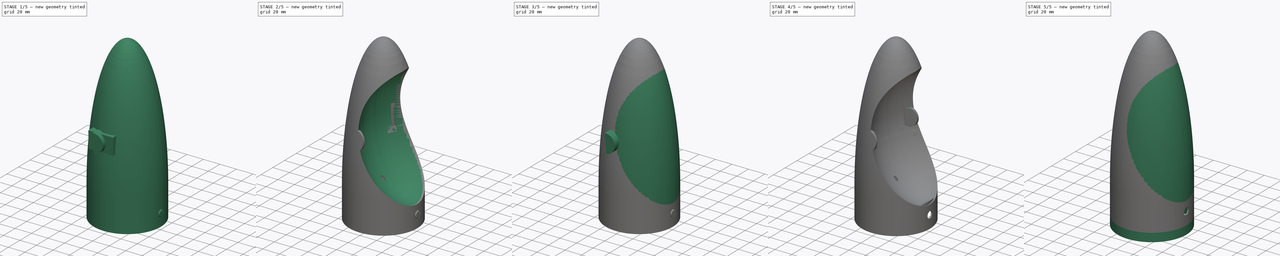
[diagram: build sequence overview — one tinted view per stage of 5, left to right]
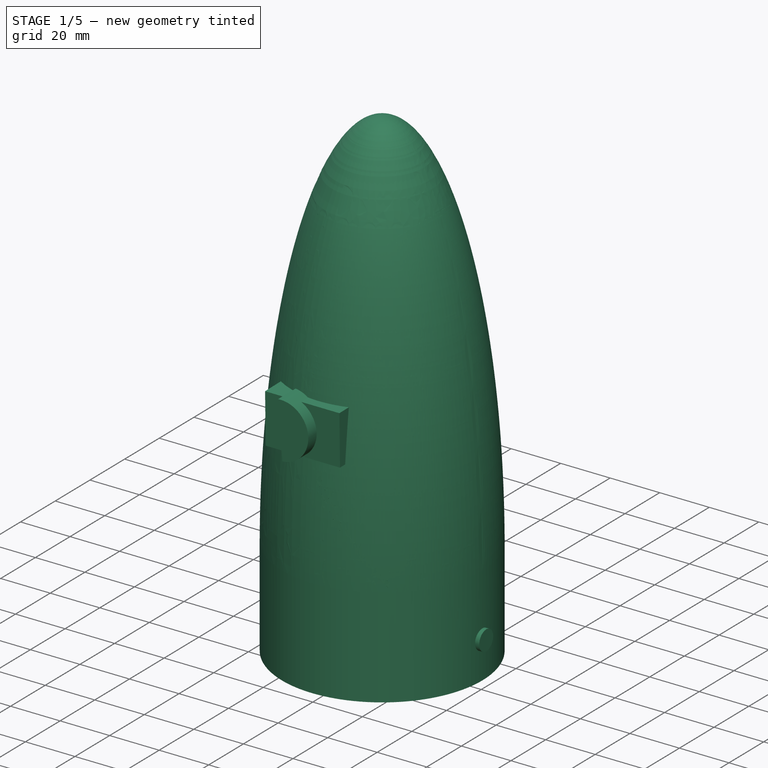
[diagram: stage 1 of 5 — iso view after this stage's code; geometry added in this stage tinted green]
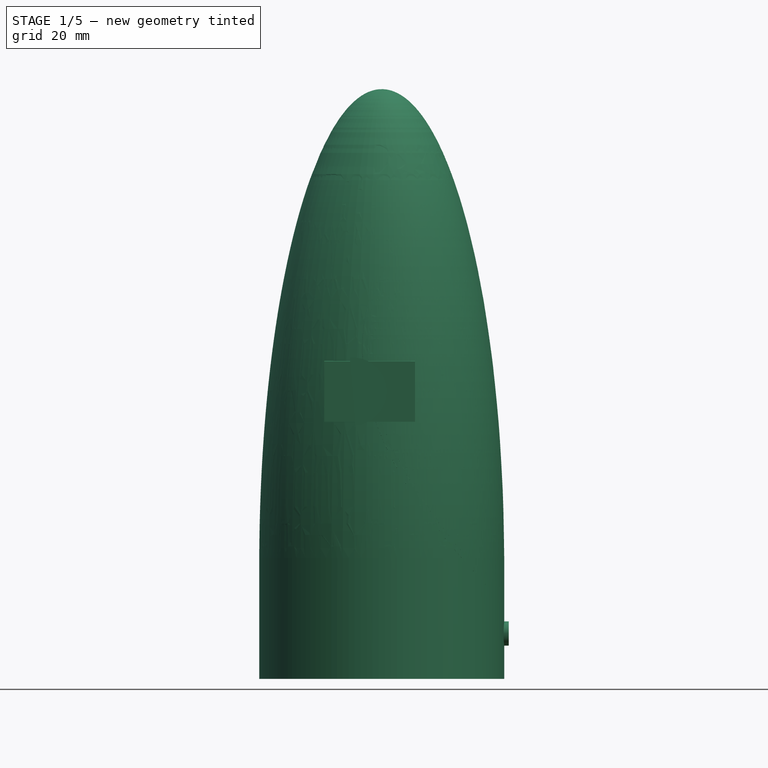
[diagram: stage 1 of 5 — front view after this stage's code; geometry added in this stage tinted green]
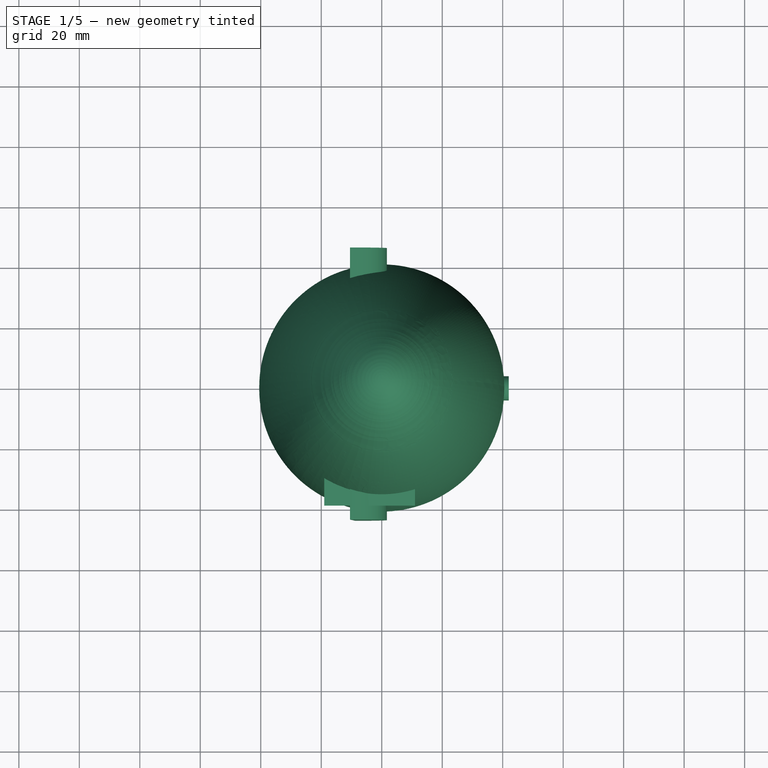
[diagram: stage 1 of 5 — top view after this stage's code; geometry added in this stage tinted green]
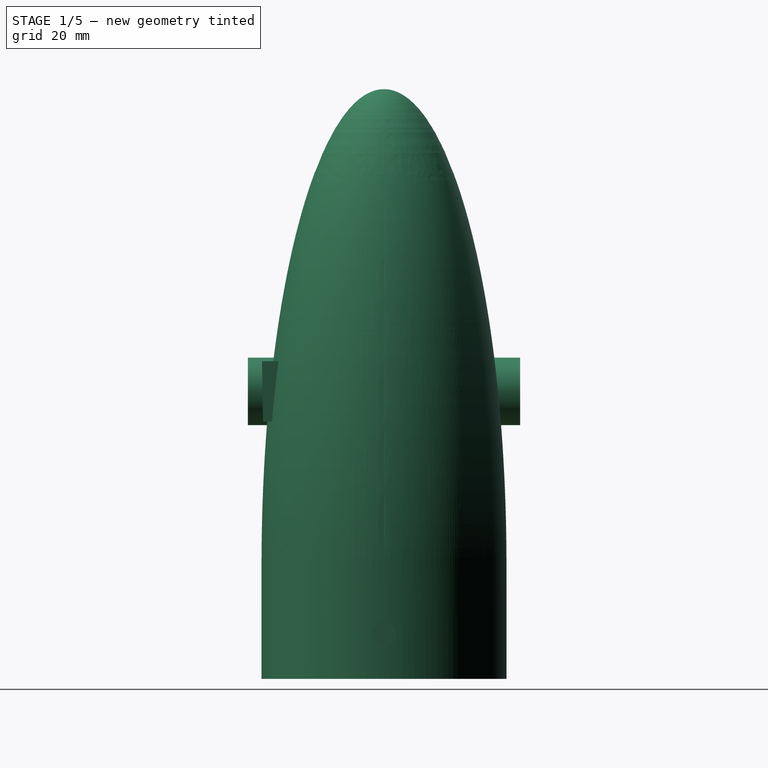
[diagram: stage 1 of 5 — right view after this stage's code; geometry added in this stage tinted green]
FCSTD DOCUMENT  (FreeCAD 0.16R6712 (Git))
Label: Phoenix3DXL
License: All rights reserved
LicenseURL: http://en.wikipedia.org/wiki/All_rights_reserved
objects: Sketcher::SketchObject×36, PartDesign::Revolution×27, Part::MultiCommon×17, Part::Cut×17, Part::MultiFuse×10, PartDesign::Pad×9, Part::Cylinder×6, Part::Box×4, Part::Chamfer×1
note: 163 computed .brp shape members not serialized (recipe doc carries the construction recipe); baked Part::Feature solids carry a one-line shape summary decoded from their .brp

FEATURE [Sketcher::SketchObject] Sketch065
  Placement = pos=(0,0,0) rot=(1,0,0;1.5708rad)
  sketch-geometry (19):
    g0: LineSegment StartX=39 StartY=40 StartZ=0 EndX=39 EndY=15 EndZ=0
    g1: LineSegment StartX=40.5 StartY=0 StartZ=0 EndX=40.5 EndY=40 EndZ=0
    g2: LineSegment StartX=39 StartY=15 StartZ=0 EndX=39.5 EndY=0 EndZ=0
    g3: LineSegment StartX=39.5 StartY=0 StartZ=0 EndX=40.5 EndY=0 EndZ=0
    g4: LineSegment [constr] StartX=30.3319 StartY=40 StartZ=0 EndX=34.2664 EndY=40 EndZ=0
    g5: ArcOfEllipse CenterX=0 CenterY=37.6991 CenterZ=0 NormalX=0 NormalY=0 NormalZ=1 MajorRadius=157.301 MinorRadius=40.5043 AngleXU=-1.5708 StartAngle=1.58542 EndAngle=3.14159
    g6: LineSegment [constr] StartX=0 StartY=-119.602 StartZ=0 EndX=0 EndY=195 EndZ=0
    g7: LineSegment [constr] StartX=40.5043 StartY=37.6991 StartZ=0 EndX=-40.5043 EndY=37.6991 EndZ=0
    g8: GeomPoint [constr] X=0 Y=-114.298 Z=0
    g9: GeomPoint [constr] X=0 Y=189.696 Z=0
    g10: ArcOfCircle CenterX=0 CenterY=178 CenterZ=0 NormalX=0 NormalY=0 NormalZ=1 Radius=17 StartAngle=1.5708 EndAngle=1.5708
    g11: GeomPoint [constr] X=-3e-12 Y=195 Z=0
    g12: ArcOfCircle CenterX=0 CenterY=178 CenterZ=0 NormalX=0 NormalY=0 NormalZ=1 Radius=15 StartAngle=1.5708 EndAngle=1.5708
    g13: ArcOfEllipse CenterX=0 CenterY=37.6991 CenterZ=0 NormalX=0 NormalY=0 NormalZ=1 MajorRadius=155.301 MinorRadius=39.0043 AngleXU=1.5708 StartAngle=4.72721 EndAngle=6.28319
    g14: LineSegment [constr] StartX=0 StartY=193 StartZ=0 EndX=0 EndY=-117.602 EndZ=0
    g15: LineSegment [constr] StartX=-39.0043 StartY=37.6991 StartZ=0 EndX=39.0043 EndY=37.6991 EndZ=0
    g16: GeomPoint [constr] X=0 Y=188.022 Z=0
    g17: GeomPoint [constr] X=0 Y=-112.624 Z=0
    g18: LineSegment StartX=0 StartY=195 StartZ=0 EndX=0 EndY=193 EndZ=0
  constraints (38):
    c: Vertical(g0)
    c: PointOnObject(g1,g-1)
    c: Vertical(g1)
    c: DistanceX(g-1,g1) = 40.5
    c: Coincident(g0,g2)
    c: Coincident(g2,g3)
    c: Coincident(g3,g1)
    c: Horizontal(g3)
    c: DistanceX(g2,g1) = 1
    c: DistanceY(g2,g0) = 15
    c: Horizontal(g4)
    c: InternalAlignment(g6-g9 -> g5) x4
    c: Vertical(g6)
    c: PointOnObject(g5,g-2)
    c: Coincident(g5,g1)
    c: PointOnObject(g10,g-2)
    c: PointOnObject(g10,g-2)
    c: Coincident(g5,g10)
    c: PointOnObject(g11,g5)
    c: PointOnObject(g11,g10)
    c: Tangent(g5,g10,g11) = -1.5708
    c: DistanceY(g-1,g6) = 195
    c: PointOnObject(g1,g4)
    c: PointOnObject(g0,g4)
    c: DistanceY(g-1,g4) = 40
    c: Radius(g10) = 17
    c: Coincident(g12,g10)
    c: PointOnObject(g12,g-2)
    c: Radius(g12) = 15
    c: InternalAlignment(g14-g17 -> g13) x4
    c: Vertical(g14)
    c: Coincident(g13,g5)
    c: Coincident(g13,g12)
    c: Coincident(g13,g0)
    c: DistanceX(g0,g1) = 1.5
    c: Coincident(g18,g6)
    c: Coincident(g18,g12)
    c: Distance(g12,g5) = 2
FEATURE [PartDesign::Revolution] Revolution
  Angle = 360
  Axis = (0,0,1)
  Base = (0,0,0)
  Placement = pos=(0,0,0) rot=(1,0,0;1.5708rad)
  ReferenceAxis = -> Sketch065 [V_Axis]
  Reversed = true
  Sketch = -> Sketch065
FEATURE [Sketcher::SketchObject] Sketch003
  Placement = pos=(0,0,0) rot=(1,0,0;1.5708rad)
  sketch-geometry (7):
    g0: LineSegment [constr] StartX=24.6736 StartY=175.154 StartZ=0 EndX=39 EndY=-31.3969 EndZ=0
    g1: ArcOfEllipse CenterX=30.2331 CenterY=95 CenterZ=0 NormalX=0 NormalY=0 NormalZ=1 MajorRadius=70.3324 MinorRadius=50 AngleXU=1.5708 StartAngle=3.23885 EndAngle=6.38044
    g2: LineSegment [constr] StartX=30.2331 StartY=165.332 StartZ=0 EndX=30.2331 EndY=24.6676 EndZ=0
    g3: LineSegment [constr] StartX=-19.7669 StartY=95 StartZ=0 EndX=80.2331 EndY=95 EndZ=0
    g4: GeomPoint [constr] X=30.2331 Y=144.464 Z=0
    g5: GeomPoint [constr] X=30.2331 Y=45.5365 Z=0
    g6: LineSegment StartX=25.3779 StartY=165 StartZ=0 EndX=35.0883 EndY=25 EndZ=0
  constraints (11):
    c: DistanceX(g-1,g0) = 39
    c: InternalAlignment(g2-g5 -> g1) x4
    c: PointOnObject(g1,g0)
    c: PointOnObject(g1,g0)
    c: PointOnObject(g1,g0)
    c: Vertical(g2)
    c: DistanceY(g1,g1) = 140
    c: DistanceY(g-1,g1) = 165
    c: DistanceX(g1,g3) = 50
    c: Coincident(g6,g1)
    c: Coincident(g6,g1)
FEATURE [PartDesign::Revolution] Revolution001  label="Öffnung_dense"
  Angle = 360
  Axis = (14.3264,0,-206.551)
  Base = (24.6736,0,175.154)
  Placement = pos=(0,0,0) rot=(1,0,0;1.5708rad)
  ReferenceAxis = -> Sketch003 [Axis0]
  Sketch = -> Sketch003
FEATURE [Part::Box] Box005  label="Seitenhalter 004"
  Height = 20
  Length = 30
  Placement = pos=(-19,-40,85) rot=(1,0,0;0.017453rad)
  Width = 10
FEATURE [Sketcher::SketchObject] Sketch107
  Placement = pos=(0,0,0) rot=(1,0,0;1.5708rad)
  sketch-geometry (5):
    g0: LineSegment StartX=40.5 StartY=0 StartZ=0 EndX=40.5 EndY=40 EndZ=0
    g1: ArcOfEllipse CenterX=-5.9389e-08 CenterY=37.6991 CenterZ=0 NormalX=0 NormalY=0 NormalZ=1 MajorRadius=157.301 MinorRadius=40.5043 AngleXU=-1.5708 StartAngle=1.58542 EndAngle=3.14159
    g2: GeomPoint [constr] X=-1.6e-11 Y=-114.298 Z=0
    g3: LineSegment StartX=40.5 StartY=0 StartZ=0 EndX=0 EndY=0 EndZ=0
    g4: LineSegment StartX=0 StartY=195 StartZ=0 EndX=0 EndY=0 EndZ=0
  constraints (9):
    c: PointOnObject(g0,g-1)
    c: Vertical(g0)
    c: DistanceX(g-1,g0) = 40.5
    c: InternalAlignment(g2,g1)
    c: Coincident(g3,g0)
    c: Coincident(g3,g-1)
    c: Coincident(g4,g1)
    c: Coincident(g4,g-1)
    c: Vertical(g4)
FEATURE [PartDesign::Revolution] Revolution034
  Angle = 360
  Axis = (0,0,1)
  Base = (0,0,0)
  Placement = pos=(0,0,0) rot=(1,0,0;1.5708rad)
  ReferenceAxis = -> Sketch107 [V_Axis]
  Reversed = true
  Sketch = -> Sketch107
FEATURE [Sketcher::SketchObject] Sketch108
  Placement = pos=(0,0,0) rot=(1,0,0;1.5708rad)
  sketch-geometry (7):
    g0: LineSegment [constr] StartX=24.6736 StartY=175.154 StartZ=0 EndX=39 EndY=-31.3969 EndZ=0
    g1: ArcOfEllipse CenterX=30.2331 CenterY=95 CenterZ=0 NormalX=0 NormalY=0 NormalZ=1 MajorRadius=70.3324 MinorRadius=50 AngleXU=1.5708 StartAngle=3.23885 EndAngle=6.38044
    g2: LineSegment [constr] StartX=30.2331 StartY=165.332 StartZ=0 EndX=30.2331 EndY=24.6676 EndZ=0
    g3: LineSegment [constr] StartX=-19.7669 StartY=95 StartZ=0 EndX=80.2331 EndY=95 EndZ=0
    g4: GeomPoint [constr] X=30.2331 Y=144.464 Z=0
    g5: GeomPoint [constr] X=30.2331 Y=45.5365 Z=0
    g6: LineSegment StartX=25.3779 StartY=165 StartZ=0 EndX=35.0883 EndY=25 EndZ=0
  constraints (11):
    c: DistanceX(g-1,g0) = 39
    c: InternalAlignment(g2-g5 -> g1) x4
    c: PointOnObject(g1,g0)
    c: PointOnObject(g1,g0)
    c: PointOnObject(g1,g0)
    c: Vertical(g2)
    c: DistanceY(g1,g1) = 140
    c: DistanceY(g-1,g1) = 165
    c: DistanceX(g1,g3) = 50
    c: Coincident(g6,g1)
    c: Coincident(g6,g1)
FEATURE [PartDesign::Revolution] Revolution035  label="Öffnung_dense013"
  Angle = 360
  Axis = (14.3264,0,-206.551)
  Base = (24.6736,0,175.154)
  Placement = pos=(0,0,0) rot=(1,0,0;1.5708rad)
  ReferenceAxis = -> Sketch108 [Axis0]
  Sketch = -> Sketch108
FEATURE [Sketcher::SketchObject] Sketch109
  Placement = pos=(0,0,0) rot=(1,0,0;1.5708rad)
  sketch-geometry (9):
    g0: LineSegment StartX=40.5 StartY=0 StartZ=0 EndX=40.5 EndY=40 EndZ=0
    g1: ArcOfEllipse CenterX=0 CenterY=37.6991 CenterZ=0 NormalX=0 NormalY=0 NormalZ=1 MajorRadius=157.301 MinorRadius=40.5043 AngleXU=-1.5708 StartAngle=1.58542 EndAngle=3.14159
    g2: LineSegment [constr] StartX=40.5043 StartY=37.6991 StartZ=0 EndX=-40.5043 EndY=37.6991 EndZ=0
    g3: GeomPoint [constr] X=-7.7467e-08 Y=-114.298 Z=0
    g4: GeomPoint [constr] X=7.7467e-08 Y=189.696 Z=0
    g5: ArcOfCircle CenterX=0 CenterY=178 CenterZ=0 NormalX=0 NormalY=0 NormalZ=1 Radius=17 StartAngle=1.5708 EndAngle=1.5708
    g6: GeomPoint [constr] X=1.93676e-07 Y=195 Z=0
    g7: LineSegment StartX=0 StartY=0 StartZ=0 EndX=40.5 EndY=0 EndZ=0
    g8: LineSegment StartX=0 StartY=0 StartZ=0 EndX=0 EndY=195 EndZ=0
  constraints (21):
    c: Vertical(g0)
    c: DistanceX(g-1,g0) = 40.5
    c: InternalAlignment(g2,g1)
    c: InternalAlignment(g3,g1)
    c: InternalAlignment(g4,g1)
    c: PointOnObject(g1,g-2)
    c: Coincident(g1,g0)
    c: PointOnObject(g5,g-2)
    c: PointOnObject(g5,g-2)
    c: Coincident(g1,g5)
    c: PointOnObject(g6,g1)
    c: PointOnObject(g6,g5)
    c: Tangent(g1,g5,g6) = -1.5708
    c: Radius(g5) = 17
    c: DistanceY(g2,g0) = 2.30092
    c: Coincident(g7,g-1)
    c: Coincident(g7,g0)
    c: Horizontal(g7)
    c: Coincident(g8,g-1)
    c: Coincident(g8,g1)
    c: Vertical(g8)
FEATURE [PartDesign::Revolution] Revolution036
  Angle = 360
  Axis = (0,0,1)
  Base = (0,0,0)
  Placement = pos=(0,0,0) rot=(1,0,0;1.5708rad)
  ReferenceAxis = -> Sketch109 [V_Axis]
  Reversed = true
  Sketch = -> Sketch109
FEATURE [Part::MultiCommon] Common024
  Shapes = -> [Revolution035,Revolution036]
FEATURE [Sketcher::SketchObject] Sketch110
  Placement = pos=(0,0,0) rot=(1,0,0;1.5708rad)
  sketch-geometry (10):
    g0: LineSegment StartX=39 StartY=40 StartZ=0 EndX=39 EndY=15 EndZ=0
    g1: LineSegment StartX=39 StartY=15 StartZ=0 EndX=39.5 EndY=0 EndZ=0
    g2: ArcOfCircle CenterX=0 CenterY=178 CenterZ=0 NormalX=0 NormalY=0 NormalZ=1 Radius=15 StartAngle=1.5708 EndAngle=1.5708
    g3: ArcOfEllipse CenterX=0 CenterY=37.6991 CenterZ=0 NormalX=0 NormalY=0 NormalZ=1 MajorRadius=155.301 MinorRadius=39.0043 AngleXU=1.5708 StartAngle=4.72721 EndAngle=6.28319
    g4: LineSegment [constr] StartX=0 StartY=193 StartZ=0 EndX=0 EndY=-117.602 EndZ=0
    g5: LineSegment [constr] StartX=-39.0043 StartY=37.6991 StartZ=0 EndX=39.0043 EndY=37.6991 EndZ=0
    g6: GeomPoint [constr] X=-1.6e-11 Y=188.022 Z=0
    g7: GeomPoint [constr] X=0 Y=-112.624 Z=0
    g8: LineSegment StartX=0 StartY=0 StartZ=0 EndX=-2e-12 EndY=193 EndZ=0
    g9: LineSegment StartX=0 StartY=0 StartZ=0 EndX=39.5 EndY=0 EndZ=0
  constraints (15):
    c: Vertical(g0)
    c: Coincident(g0,g1)
    c: DistanceY(g1,g0) = 15
    c: PointOnObject(g2,g-2)
    c: Radius(g2) = 15
    c: InternalAlignment(g4-g7 -> g3) x4
    c: Vertical(g4)
    c: Coincident(g3,g2)
    c: Coincident(g3,g0)
    c: Coincident(g8,g2)
    c: Coincident(g8,g-1)
    c: Coincident(g9,g-1)
    c: Coincident(g9,g1)
    c: Horizontal(g9)
    c: DistanceX(g9,g9) = 39.5
FEATURE [PartDesign::Revolution] Revolution037
  Angle = 360
  Axis = (0,0,1)
  Base = (0,0,0)
  Placement = pos=(0,0,0) rot=(1,0,0;1.5708rad)
  ReferenceAxis = -> Sketch110 [V_Axis]
  Reversed = true
  Sketch = -> Sketch110
FEATURE [Part::Cut] Cut018  label="Fallschirmtüre005"
  Base = -> Common024
  Tool = -> Revolution037
FEATURE [Sketcher::SketchObject] Sketch111
  Placement = pos=(0,0,0) rot=(1,0,0;1.5708rad)
  sketch-geometry (2):
    g0: ArcOfCircle CenterX=-9.47802 CenterY=95.0493 CenterZ=0 NormalX=0 NormalY=0 NormalZ=1 Radius=11.1643 StartAngle=4.77716 EndAngle=7.94536
    g1: LineSegment StartX=-10.4968 StartY=106.167 StartZ=0 EndX=-8.75536 EndY=83.9085 EndZ=0
  constraints (2):
    c: Coincident(g1,g0)
    c: Coincident(g1,g0)
FEATURE [PartDesign::Pad] Pad010
  Length = 90
  Length2 = 100
  Midplane = true
  Placement = pos=(0,0,0) rot=(1,0,0;1.5708rad)
  Sketch = -> Sketch111
  Type = 0
FEATURE [Sketcher::SketchObject] Sketch112
  Placement = pos=(0,0,80) rot=(0,0,1;0rad)
  sketch-geometry (4):
    g0: LineSegment StartX=-10.4081 StartY=30.3819 StartZ=0 EndX=-10.4081 EndY=-30.3819 EndZ=0
    g1: LineSegment StartX=-10.4081 StartY=-30.3819 StartZ=0 EndX=2.8182 EndY=-34.1326 EndZ=0
    g2: LineSegment StartX=2.8182 StartY=-34.1326 StartZ=0 EndX=2.8182 EndY=34.1326 EndZ=0
    g3: LineSegment StartX=2.8182 StartY=34.1326 StartZ=0 EndX=-10.4081 EndY=30.3819 EndZ=0
  constraints (7):
    c: Vertical(g0)
    c: Coincident(g0,g1)
    c: Coincident(g1,g2)
    c: Coincident(g2,g3)
    c: Coincident(g3,g0)
    c: Symmetric(g0,g0,g-1)
    c: Symmetric(g2,g1,g-1)
FEATURE [PartDesign::Pad] Pad011
  Length = 30
  Length2 = 100
  Placement = pos=(0,0,80) rot=(0,0,1;0rad)
  Sketch = -> Sketch112
  Type = 0
FEATURE [Sketcher::SketchObject] Sketch113
  Placement = pos=(0,0,0) rot=(1,0,0;1.5708rad)
  sketch-geometry (7):
    g0: LineSegment [constr] StartX=25.5796 StartY=175.154 StartZ=0 EndX=39 EndY=-31.3979 EndZ=0
    g1: ArcOfEllipse CenterX=30.7875 CenterY=95 CenterZ=0 NormalX=0 NormalY=0 NormalZ=1 MajorRadius=71.7927 MinorRadius=51.5 AngleXU=1.5708 StartAngle=3.23192 EndAngle=6.37351
    g2: LineSegment [constr] StartX=30.7875 StartY=166.793 StartZ=0 EndX=30.7875 EndY=23.2073 EndZ=0
    g3: LineSegment [constr] StartX=-20.7125 StartY=95 StartZ=0 EndX=82.2875 EndY=95 EndZ=0
    g4: GeomPoint [constr] X=30.7875 Y=145.019 Z=0
    g5: GeomPoint [constr] X=30.7875 Y=44.9806 Z=0
    g6: LineSegment StartX=26.1419 StartY=166.5 StartZ=0 EndX=35.4331 EndY=23.5 EndZ=0
  constraints (11):
    c: DistanceX(g-1,g0) = 39
    c: InternalAlignment(g2-g5 -> g1) x4
    c: PointOnObject(g1,g0)
    c: PointOnObject(g1,g0)
    c: PointOnObject(g1,g0)
    c: Vertical(g2)
    c: DistanceY(g1,g1) = 143
    c: DistanceY(g-1,g1) = 166.5
    c: DistanceX(g1,g3) = 51.5
    c: Coincident(g6,g1)
    c: Coincident(g6,g1)
FEATURE [PartDesign::Revolution] Revolution038  label="Öffnung_dense014"
  Angle = 360
  Axis = (13.4204,0,-206.552)
  Base = (25.5796,0,175.154)
  Placement = pos=(0,0,0) rot=(1,0,0;1.5708rad)
  ReferenceAxis = -> Sketch113 [Axis0]
  Sketch = -> Sketch113
FEATURE [Sketcher::SketchObject] Sketch114
  Placement = pos=(0,0,0) rot=(1,0,0;1.5708rad)
  sketch-geometry (9):
    g0: LineSegment StartX=40.5 StartY=0 StartZ=0 EndX=40.5 EndY=40 EndZ=0
    g1: ArcOfEllipse CenterX=0 CenterY=37.6991 CenterZ=0 NormalX=0 NormalY=0 NormalZ=1 MajorRadius=157.301 MinorRadius=40.5043 AngleXU=-1.5708 StartAngle=1.58542 EndAngle=3.14159
    g2: LineSegment [constr] StartX=40.5043 StartY=37.6991 StartZ=0 EndX=-40.5043 EndY=37.6991 EndZ=0
    g3: GeomPoint [constr] X=-7.7467e-08 Y=-114.298 Z=0
    g4: GeomPoint [constr] X=7.7467e-08 Y=189.696 Z=0
    g5: ArcOfCircle CenterX=0 CenterY=178 CenterZ=0 NormalX=0 NormalY=0 NormalZ=1 Radius=17 StartAngle=1.5708 EndAngle=1.5708
    g6: GeomPoint [constr] X=1.93676e-07 Y=195 Z=0
    g7: LineSegment StartX=0 StartY=0 StartZ=0 EndX=40.5 EndY=0 EndZ=0
    g8: LineSegment StartX=0 StartY=0 StartZ=0 EndX=0 EndY=195 EndZ=0
  constraints (21):
    c: Vertical(g0)
    c: DistanceX(g-1,g0) = 40.5
    c: InternalAlignment(g2,g1)
    c: InternalAlignment(g3,g1)
    c: InternalAlignment(g4,g1)
    c: PointOnObject(g1,g-2)
    c: Coincident(g1,g0)
    c: PointOnObject(g5,g-2)
    c: PointOnObject(g5,g-2)
    c: Coincident(g1,g5)
    c: PointOnObject(g6,g1)
    c: PointOnObject(g6,g5)
    c: Tangent(g1,g5,g6) = -1.5708
    c: Radius(g5) = 17
    c: DistanceY(g2,g0) = 2.30092
    c: Coincident(g7,g-1)
    c: Coincident(g7,g0)
    c: Horizontal(g7)
    c: Coincident(g8,g-1)
    c: Coincident(g8,g1)
    c: Vertical(g8)
FEATURE [PartDesign::Revolution] Revolution039
  Angle = 360
  Axis = (0,0,1)
  Base = (0,0,0)
  Placement = pos=(0,0,0) rot=(1,0,0;1.5708rad)
  ReferenceAxis = -> Sketch114 [V_Axis]
  Reversed = true
  Sketch = -> Sketch114
FEATURE [Part::MultiCommon] Common026
  Shapes = -> [Revolution038,Revolution039]
FEATURE [Part::Cut] Cut
  Base = -> Revolution
  Tool = -> Revolution001
FEATURE [Part::Cylinder] Cylinder001  label="Zylinder001"
  Angle = 360
  Height = 10
  Placement = pos=(32,0,15) rot=(0,1,0;1.5708rad)
  Radius = 4
FEATURE [PartDesign::Pad] Pad
  Length = 2
  Length2 = 100
  Placement = pos=(0,0,21) rot=(0,0,1;0rad)
  Sketch = -> Sketch115
  Type = 0
FEATURE [Part::Cylinder] Cylinder004  label="Zylinder004"
  Angle = 360
  Height = 4
  Placement = pos=(-16,-28.9,95) rot=(1,0,0;1.5708rad)
  Radius = 2
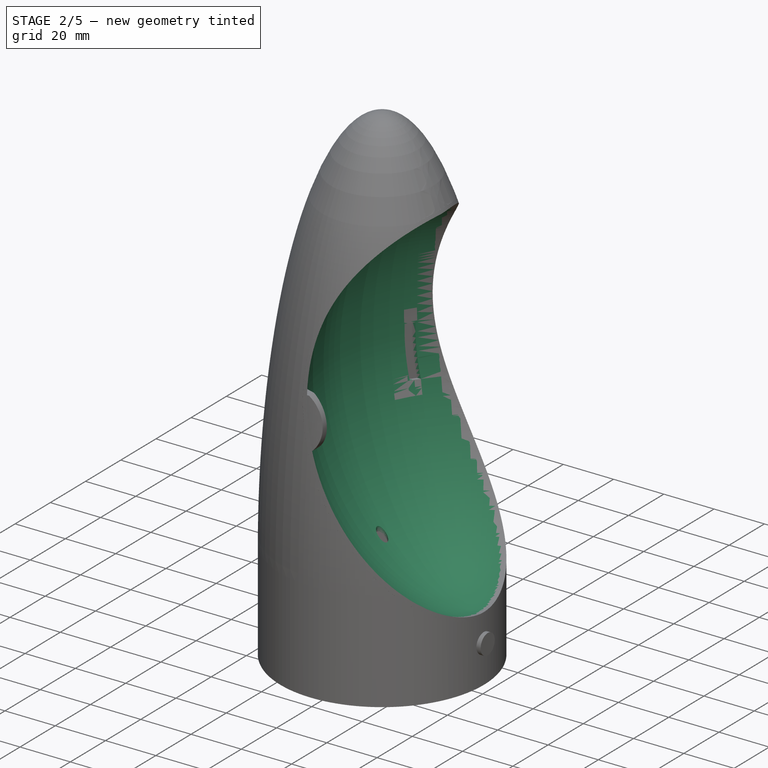
[diagram: stage 2 of 5 — iso view after this stage's code; geometry added in this stage tinted green]
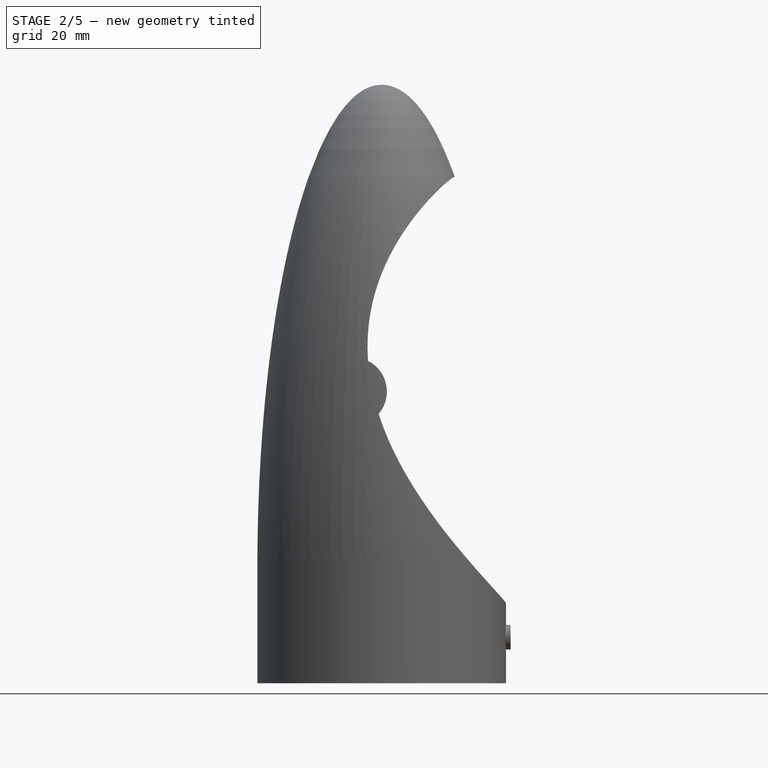
[diagram: stage 2 of 5 — front view after this stage's code; geometry added in this stage tinted green]
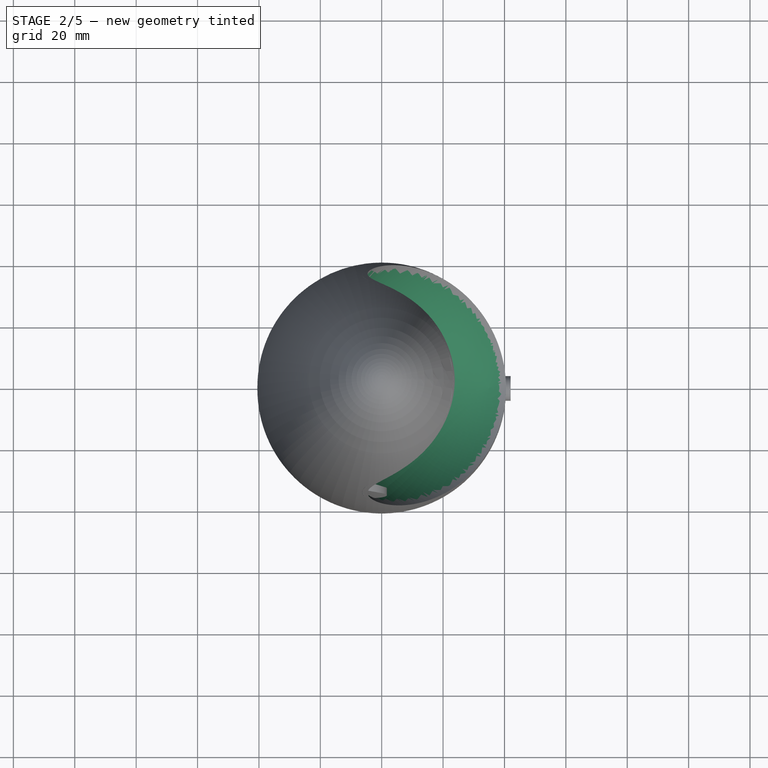
[diagram: stage 2 of 5 — top view after this stage's code; geometry added in this stage tinted green]
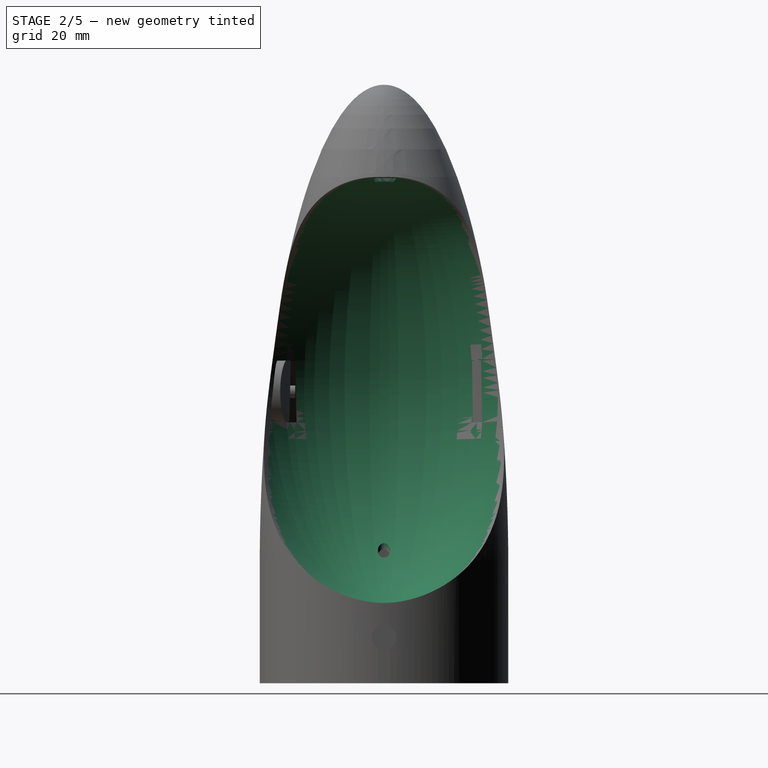
[diagram: stage 2 of 5 — right view after this stage's code; geometry added in this stage tinted green]
FEATURE [Sketcher::SketchObject] Sketch066
  Placement = pos=(0,0,0) rot=(1,0,0;1.5708rad)
  sketch-geometry (7):
    g0: LineSegment [constr] StartX=24.6736 StartY=175.154 StartZ=0 EndX=39 EndY=-31.3969 EndZ=0
    g1: ArcOfEllipse CenterX=30.2331 CenterY=95 CenterZ=0 NormalX=0 NormalY=0 NormalZ=1 MajorRadius=70.3324 MinorRadius=50 AngleXU=1.5708 StartAngle=3.23885 EndAngle=6.38044
    g2: LineSegment [constr] StartX=30.2331 StartY=165.332 StartZ=0 EndX=30.2331 EndY=24.6676 EndZ=0
    g3: LineSegment [constr] StartX=-19.7669 StartY=95 StartZ=0 EndX=80.2331 EndY=95 EndZ=0
    g4: GeomPoint [constr] X=30.2331 Y=144.464 Z=0
    g5: GeomPoint [constr] X=30.2331 Y=45.5365 Z=0
    g6: LineSegment StartX=25.3779 StartY=165 StartZ=0 EndX=35.0883 EndY=25 EndZ=0
  constraints (11):
    c: DistanceX(g-1,g0) = 39
    c: InternalAlignment(g2-g5 -> g1) x4
    c: PointOnObject(g1,g0)
    c: PointOnObject(g1,g0)
    c: PointOnObject(g1,g0)
    c: Vertical(g2)
    c: DistanceY(g1,g1) = 140
    c: DistanceY(g-1,g1) = 165
    c: DistanceX(g1,g3) = 50
    c: Coincident(g6,g1)
    c: Coincident(g6,g1)
FEATURE [PartDesign::Revolution] Revolution002  label="Öffnung_dense001"
  Angle = 360
  Axis = (14.3264,0,-206.551)
  Base = (24.6736,0,175.154)
  Placement = pos=(0,0,0) rot=(1,0,0;1.5708rad)
  ReferenceAxis = -> Sketch066 [Axis0]
  Sketch = -> Sketch066
FEATURE [Sketcher::SketchObject] Sketch068
  Placement = pos=(0,0,0) rot=(1,0,0;1.5708rad)
  sketch-geometry (7):
    g0: LineSegment [constr] StartX=25.5796 StartY=175.154 StartZ=0 EndX=39 EndY=-31.3979 EndZ=0
    g1: ArcOfEllipse CenterX=30.7875 CenterY=95 CenterZ=0 NormalX=0 NormalY=0 NormalZ=1 MajorRadius=71.7927 MinorRadius=51.5 AngleXU=1.5708 StartAngle=3.23192 EndAngle=6.37351
    g2: LineSegment [constr] StartX=30.7875 StartY=166.793 StartZ=0 EndX=30.7875 EndY=23.2073 EndZ=0
    g3: LineSegment [constr] StartX=-20.7125 StartY=95 StartZ=0 EndX=82.2875 EndY=95 EndZ=0
    g4: GeomPoint [constr] X=30.7875 Y=145.019 Z=0
    g5: GeomPoint [constr] X=30.7875 Y=44.9806 Z=0
    g6: LineSegment StartX=26.1419 StartY=166.5 StartZ=0 EndX=35.4331 EndY=23.5 EndZ=0
  constraints (11):
    c: DistanceX(g-1,g0) = 39
    c: InternalAlignment(g2-g5 -> g1) x4
    c: PointOnObject(g1,g0)
    c: PointOnObject(g1,g0)
    c: PointOnObject(g1,g0)
    c: Vertical(g2)
    c: DistanceY(g1,g1) = 143
    c: DistanceY(g-1,g1) = 166.5
    c: DistanceX(g1,g3) = 51.5
    c: Coincident(g6,g1)
    c: Coincident(g6,g1)
FEATURE [PartDesign::Revolution] Revolution004  label="Öffnung_dense002"
  Angle = 360
  Axis = (13.4204,0,-206.552)
  Base = (25.5796,0,175.154)
  Placement = pos=(0,0,0) rot=(1,0,0;1.5708rad)
  ReferenceAxis = -> Sketch068 [Axis0]
  Sketch = -> Sketch068
FEATURE [Sketcher::SketchObject] Sketch069
  Placement = pos=(0,0,0) rot=(1,0,0;1.5708rad)
  sketch-geometry (9):
    g0: LineSegment StartX=40.5 StartY=0 StartZ=0 EndX=40.5 EndY=40 EndZ=0
    g1: ArcOfEllipse CenterX=0 CenterY=37.6991 CenterZ=0 NormalX=0 NormalY=0 NormalZ=1 MajorRadius=157.301 MinorRadius=40.5043 AngleXU=-1.5708 StartAngle=1.58542 EndAngle=3.14159
    g2: LineSegment [constr] StartX=40.5043 StartY=37.6991 StartZ=0 EndX=-40.5043 EndY=37.6991 EndZ=0
    g3: GeomPoint [constr] X=-7.7467e-08 Y=-114.298 Z=0
    g4: GeomPoint [constr] X=7.7467e-08 Y=189.696 Z=0
    g5: ArcOfCircle CenterX=0 CenterY=178 CenterZ=0 NormalX=0 NormalY=0 NormalZ=1 Radius=17 StartAngle=1.5708 EndAngle=1.5708
    g6: GeomPoint [constr] X=1.93676e-07 Y=195 Z=0
    g7: LineSegment StartX=0 StartY=0 StartZ=0 EndX=40.5 EndY=0 EndZ=0
    g8: LineSegment StartX=0 StartY=0 StartZ=0 EndX=0 EndY=195 EndZ=0
  constraints (21):
    c: Vertical(g0)
    c: DistanceX(g-1,g0) = 40.5
    c: InternalAlignment(g2,g1)
    c: InternalAlignment(g3,g1)
    c: InternalAlignment(g4,g1)
    c: PointOnObject(g1,g-2)
    c: Coincident(g1,g0)
    c: PointOnObject(g5,g-2)
    c: PointOnObject(g5,g-2)
    c: Coincident(g1,g5)
    c: PointOnObject(g6,g1)
    c: PointOnObject(g6,g5)
    c: Tangent(g1,g5,g6) = -1.5708
    c: Radius(g5) = 17
    c: DistanceY(g2,g0) = 2.30092
    c: Coincident(g7,g-1)
    c: Coincident(g7,g0)
    c: Horizontal(g7)
    c: Coincident(g8,g-1)
    c: Coincident(g8,g1)
    c: Vertical(g8)
FEATURE [PartDesign::Revolution] Revolution005
  Angle = 360
  Axis = (0,0,1)
  Base = (0,0,0)
  Placement = pos=(0,0,0) rot=(1,0,0;1.5708rad)
  ReferenceAxis = -> Sketch069 [V_Axis]
  Reversed = true
  Sketch = -> Sketch069
FEATURE [Part::MultiCommon] Common
  Shapes = -> [Revolution004,Revolution005]
FEATURE [Part::Cut] Cut003
  Base = -> Common
  Tool = -> Revolution002
FEATURE [Part::Box] Box  label="Federlasche1"
  Height = 20
  Length = 100
  Placement = pos=(-19,29,85) rot=(1,0,0;0.017453rad)
  Width = 3
FEATURE [Part::Box] Box001  label="Federlasche002"
  Height = 20
  Length = 100
  Placement = pos=(-19,-31.5,85) rot=(1,0,0;0.017453rad)
  Width = 3
FEATURE [Part::Cut] Cut004
  Base = -> Cut003
  Tool = -> Box
FEATURE [Part::Cut] Cut005
  Base = -> Cut004
  Tool = -> Box001
FEATURE [Part::Cylinder] Cylinder  label="Zylinder"
  Angle = 360
  Height = 10
  Placement = pos=(0,0,37) rot=(0,0,1;0rad)
  Radius = 2
FEATURE [Part::Cut] Cut006
  Base = -> Cut005
  Tool = -> Cylinder
FEATURE [Sketcher::SketchObject] Sketch094
  Placement = pos=(0,0,160) rot=(0,0,1;0rad)
  sketch-geometry (4):
    g0: LineSegment StartX=15 StartY=3 StartZ=0 EndX=20 EndY=4 EndZ=0
    g1: LineSegment StartX=20 StartY=4 StartZ=0 EndX=20 EndY=-4 EndZ=0
    g2: LineSegment StartX=20 StartY=-4 StartZ=0 EndX=15 EndY=-3 EndZ=0
    g3: LineSegment StartX=15 StartY=-3 StartZ=0 EndX=15 EndY=3 EndZ=0
  constraints (12):
    c: Coincident(g0,g1)
    c: Vertical(g1)
    c: Coincident(g1,g2)
    c: Coincident(g2,g3)
    c: Coincident(g3,g0)
    c: Vertical(g3)
    c: Symmetric(g0,g2,g-1)
    c: Symmetric(g0,g1,g-1)
    c: DistanceY(g1,g1) = 8
    c: DistanceY(g3,g3) = 6
    c: DistanceX(g0,g0) = 5
    c: DistanceX(g-1,g0) = 15
FEATURE [PartDesign::Pad] Pad005
  Length = 10
  Length2 = 100
  Placement = pos=(0,0,160) rot=(0,0,1;0rad)
  Sketch = -> Sketch094
  Type = 0
FEATURE [Part::Cut] Cut014
  Base = -> Cut006
  Tool = -> Pad005
FEATURE [Part::MultiCommon] Common023
  Shapes = -> [Revolution034,Box005]
FEATURE [Part::Cut] Cut019
  Base = -> Common023
  Tool = -> Cut018
FEATURE [Part::MultiCommon] Common025
  Shapes = -> [Cut019,Pad010]
FEATURE [Part::Cut] Cut020
  Base = -> Common025
  Tool = -> Pad011
FEATURE [Part::MultiCommon] Common027
  Shapes = -> [Cut020,Common026]
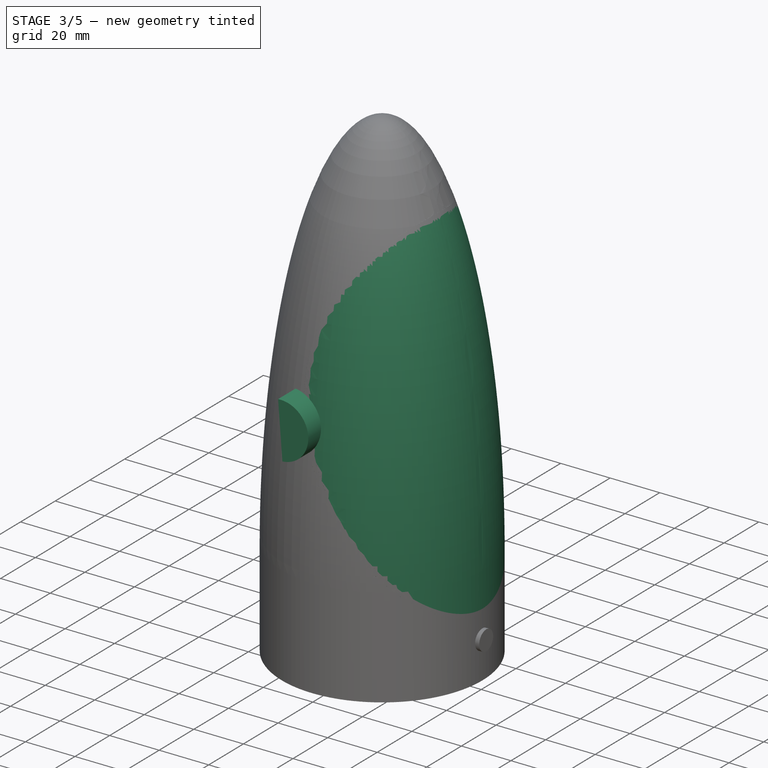
[diagram: stage 3 of 5 — iso view after this stage's code; geometry added in this stage tinted green]
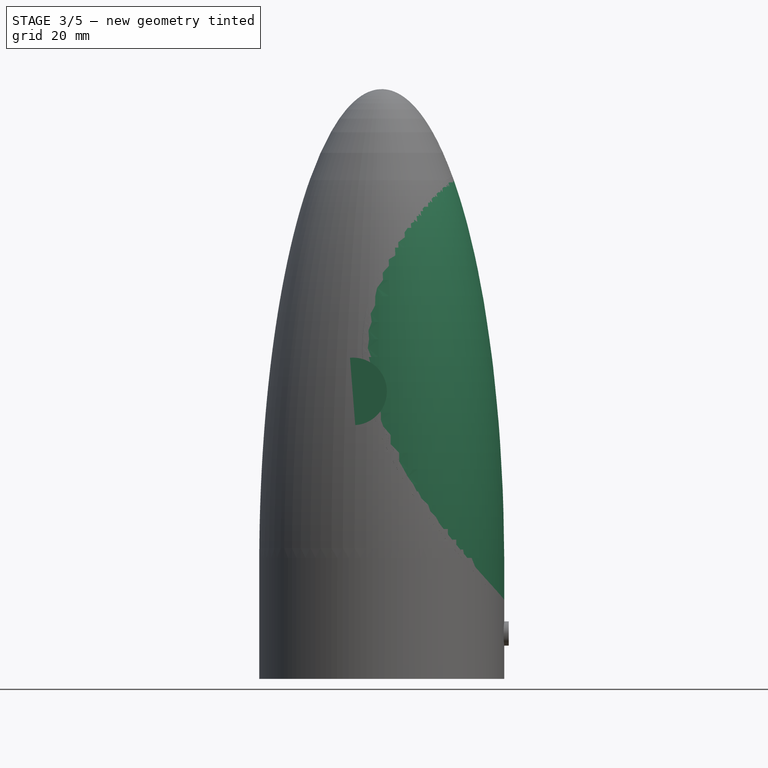
[diagram: stage 3 of 5 — front view after this stage's code; geometry added in this stage tinted green]
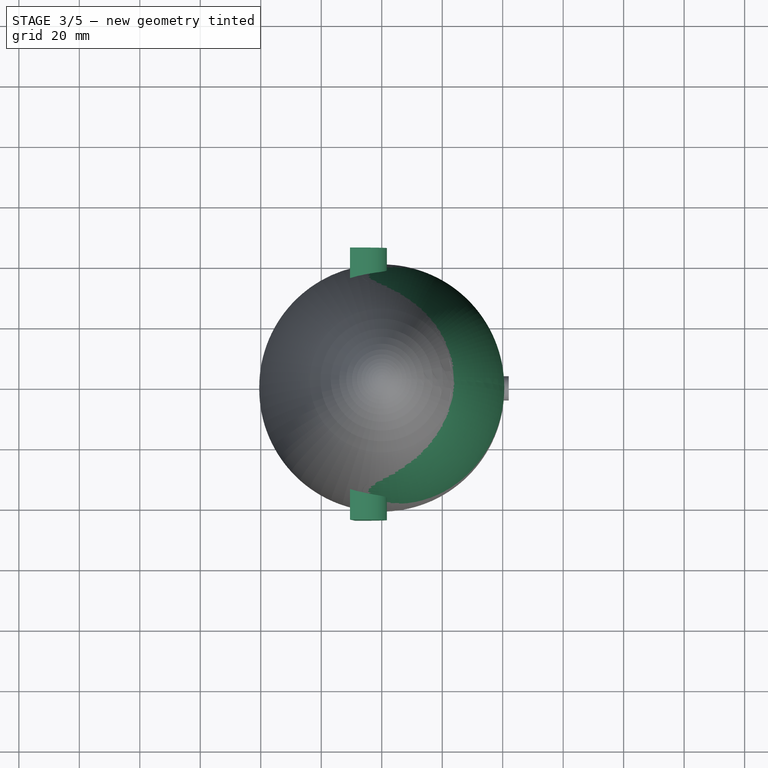
[diagram: stage 3 of 5 — top view after this stage's code; geometry added in this stage tinted green]
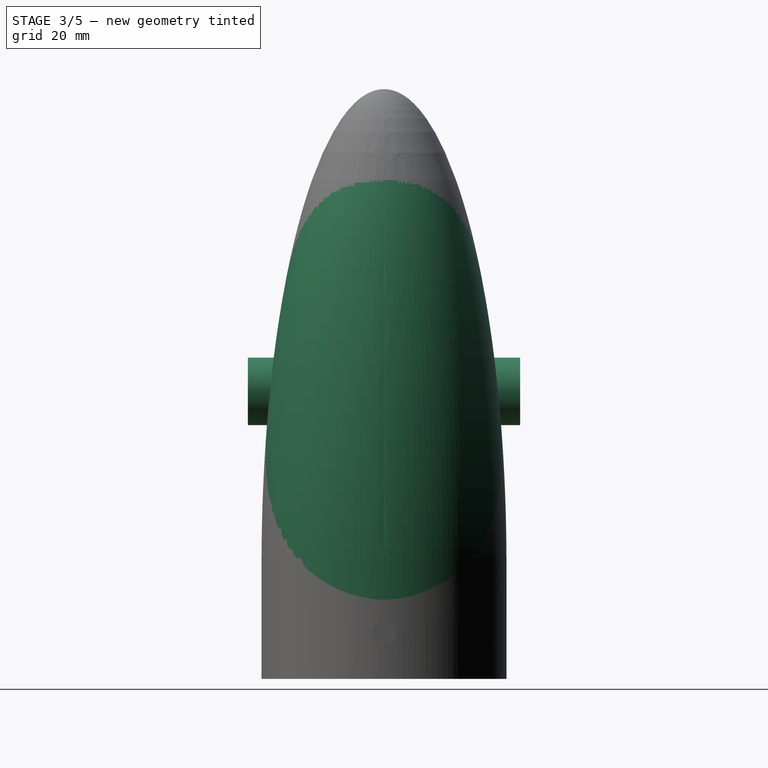
[diagram: stage 3 of 5 — right view after this stage's code; geometry added in this stage tinted green]
FEATURE [Sketcher::SketchObject] Sketch
  Placement = pos=(0,0,0) rot=(1,0,0;1.5708rad)
  sketch-geometry (4):
    g0: ArcOfCircle CenterX=4.88919 CenterY=87.6864 CenterZ=0 NormalX=0 NormalY=0 NormalZ=1 Radius=67.962 StartAngle=4.40962 EndAngle=5.58023
    g1: LineSegment StartX=-15.3744 StartY=22.8156 StartZ=0 EndX=-17.198 EndY=6.18308 EndZ=0
    g2: LineSegment StartX=-17.198 StartY=6.18308 StartZ=0 EndX=63.8538 EndY=9.30847 EndZ=0
    g3: LineSegment StartX=63.8538 StartY=9.30847 StartZ=0 EndX=56.7397 EndY=43.7506 EndZ=0
  constraints (4):
    c: Coincident(g1,g2)
    c: Coincident(g2,g3)
    c: Coincident(g3,g0)
    c: Coincident(g1,g0)
FEATURE [PartDesign::Pad] Pad004
  Length = 60
  Length2 = 100
  Midplane = true
  Placement = pos=(0,0,0) rot=(1,0,0;1.5708rad)
  Sketch = -> Sketch
  Type = 0
FEATURE [Sketcher::SketchObject] Sketch089
  Placement = pos=(0,0,0) rot=(1,0,0;1.5708rad)
  sketch-geometry (7):
    g0: LineSegment [constr] StartX=24.6736 StartY=175.154 StartZ=0 EndX=39 EndY=-31.3969 EndZ=0
    g1: ArcOfEllipse CenterX=30.2331 CenterY=95 CenterZ=0 NormalX=0 NormalY=0 NormalZ=1 MajorRadius=70.3324 MinorRadius=50 AngleXU=1.5708 StartAngle=3.23885 EndAngle=6.38044
    g2: LineSegment [constr] StartX=30.2331 StartY=165.332 StartZ=0 EndX=30.2331 EndY=24.6676 EndZ=0
    g3: LineSegment [constr] StartX=-19.7669 StartY=95 StartZ=0 EndX=80.2331 EndY=95 EndZ=0
    g4: GeomPoint [constr] X=30.2331 Y=144.464 Z=0
    g5: GeomPoint [constr] X=30.2331 Y=45.5365 Z=0
    g6: LineSegment StartX=25.3779 StartY=165 StartZ=0 EndX=35.0883 EndY=25 EndZ=0
  constraints (11):
    c: DistanceX(g-1,g0) = 39
    c: InternalAlignment(g2-g5 -> g1) x4
    c: PointOnObject(g1,g0)
    c: PointOnObject(g1,g0)
    c: PointOnObject(g1,g0)
    c: Vertical(g2)
    c: DistanceY(g1,g1) = 140
    c: DistanceY(g-1,g1) = 165
    c: DistanceX(g1,g3) = 50
    c: Coincident(g6,g1)
    c: Coincident(g6,g1)
FEATURE [PartDesign::Revolution] Revolution021  label="Öffnung_dense008"
  Angle = 360
  Axis = (14.3264,0,-206.551)
  Base = (24.6736,0,175.154)
  Placement = pos=(0,0,0) rot=(1,0,0;1.5708rad)
  ReferenceAxis = -> Sketch089 [Axis0]
  Sketch = -> Sketch089
FEATURE [Sketcher::SketchObject] Sketch090
  Placement = pos=(0,0,0) rot=(1,0,0;1.5708rad)
  sketch-geometry (9):
    g0: LineSegment StartX=40.5 StartY=0 StartZ=0 EndX=40.5 EndY=40 EndZ=0
    g1: ArcOfEllipse CenterX=0 CenterY=37.6991 CenterZ=0 NormalX=0 NormalY=0 NormalZ=1 MajorRadius=157.301 MinorRadius=40.5043 AngleXU=-1.5708 StartAngle=1.58542 EndAngle=3.14159
    g2: LineSegment [constr] StartX=40.5043 StartY=37.6991 StartZ=0 EndX=-40.5043 EndY=37.6991 EndZ=0
    g3: GeomPoint [constr] X=-7.7467e-08 Y=-114.298 Z=0
    g4: GeomPoint [constr] X=7.7467e-08 Y=189.696 Z=0
    g5: ArcOfCircle CenterX=0 CenterY=178 CenterZ=0 NormalX=0 NormalY=0 NormalZ=1 Radius=17 StartAngle=1.5708 EndAngle=1.5708
    g6: GeomPoint [constr] X=1.93676e-07 Y=195 Z=0
    g7: LineSegment StartX=0 StartY=0 StartZ=0 EndX=40.5 EndY=0 EndZ=0
    g8: LineSegment StartX=0 StartY=0 StartZ=0 EndX=0 EndY=195 EndZ=0
  constraints (21):
    c: Vertical(g0)
    c: DistanceX(g-1,g0) = 40.5
    c: InternalAlignment(g2,g1)
    c: InternalAlignment(g3,g1)
    c: InternalAlignment(g4,g1)
    c: PointOnObject(g1,g-2)
    c: Coincident(g1,g0)
    c: PointOnObject(g5,g-2)
    c: PointOnObject(g5,g-2)
    c: Coincident(g1,g5)
    c: PointOnObject(g6,g1)
    c: PointOnObject(g6,g5)
    c: Tangent(g1,g5,g6) = -1.5708
    c: Radius(g5) = 17
    c: DistanceY(g2,g0) = 2.30092
    c: Coincident(g7,g-1)
    c: Coincident(g7,g0)
    c: Horizontal(g7)
    c: Coincident(g8,g-1)
    c: Coincident(g8,g1)
    c: Vertical(g8)
FEATURE [PartDesign::Revolution] Revolution022
  Angle = 360
  Axis = (0,0,1)
  Base = (0,0,0)
  Placement = pos=(0,0,0) rot=(1,0,0;1.5708rad)
  ReferenceAxis = -> Sketch090 [V_Axis]
  Reversed = true
  Sketch = -> Sketch090
FEATURE [Part::MultiCommon] Common013
  Shapes = -> [Revolution021,Revolution022]
FEATURE [Part::MultiCommon] Common014
  Shapes = -> [Pad004,Common013]
FEATURE [Sketcher::SketchObject] Sketch091
  Placement = pos=(0,0,0) rot=(1,0,0;1.5708rad)
  sketch-geometry (7):
    g0: LineSegment [constr] StartX=24.6736 StartY=175.154 StartZ=0 EndX=39 EndY=-31.3969 EndZ=0
    g1: ArcOfEllipse CenterX=30.2331 CenterY=95 CenterZ=0 NormalX=0 NormalY=0 NormalZ=1 MajorRadius=70.3324 MinorRadius=50 AngleXU=1.5708 StartAngle=3.23885 EndAngle=6.38044
    g2: LineSegment [constr] StartX=30.2331 StartY=165.332 StartZ=0 EndX=30.2331 EndY=24.6676 EndZ=0
    g3: LineSegment [constr] StartX=-19.7669 StartY=95 StartZ=0 EndX=80.2331 EndY=95 EndZ=0
    g4: GeomPoint [constr] X=30.2331 Y=144.464 Z=0
    g5: GeomPoint [constr] X=30.2331 Y=45.5365 Z=0
    g6: LineSegment StartX=25.3779 StartY=165 StartZ=0 EndX=35.0883 EndY=25 EndZ=0
  constraints (11):
    c: DistanceX(g-1,g0) = 39
    c: InternalAlignment(g2-g5 -> g1) x4
    c: PointOnObject(g1,g0)
    c: PointOnObject(g1,g0)
    c: PointOnObject(g1,g0)
    c: Vertical(g2)
    c: DistanceY(g1,g1) = 140
    c: DistanceY(g-1,g1) = 165
    c: DistanceX(g1,g3) = 50
    c: Coincident(g6,g1)
    c: Coincident(g6,g1)
FEATURE [PartDesign::Revolution] Revolution023  label="Öffnung_dense009"
  Angle = 360
  Axis = (14.3264,0,-206.551)
  Base = (24.6736,0,175.154)
  Placement = pos=(0,0,0) rot=(1,0,0;1.5708rad)
  ReferenceAxis = -> Sketch091 [Axis0]
  Sketch = -> Sketch091
FEATURE [Sketcher::SketchObject] Sketch092
  Placement = pos=(0,0,0) rot=(1,0,0;1.5708rad)
  sketch-geometry (9):
    g0: LineSegment StartX=40.5 StartY=0 StartZ=0 EndX=40.5 EndY=40 EndZ=0
    g1: ArcOfEllipse CenterX=0 CenterY=37.6991 CenterZ=0 NormalX=0 NormalY=0 NormalZ=1 MajorRadius=157.301 MinorRadius=40.5043 AngleXU=-1.5708 StartAngle=1.58542 EndAngle=3.14159
    g2: LineSegment [constr] StartX=40.5043 StartY=37.6991 StartZ=0 EndX=-40.5043 EndY=37.6991 EndZ=0
    g3: GeomPoint [constr] X=-7.7467e-08 Y=-114.298 Z=0
    g4: GeomPoint [constr] X=7.7467e-08 Y=189.696 Z=0
    g5: ArcOfCircle CenterX=0 CenterY=178 CenterZ=0 NormalX=0 NormalY=0 NormalZ=1 Radius=17 StartAngle=1.5708 EndAngle=1.5708
    g6: GeomPoint [constr] X=1.93676e-07 Y=195 Z=0
    g7: LineSegment StartX=0 StartY=0 StartZ=0 EndX=40.5 EndY=0 EndZ=0
    g8: LineSegment StartX=0 StartY=0 StartZ=0 EndX=0 EndY=195 EndZ=0
  constraints (21):
    c: Vertical(g0)
    c: DistanceX(g-1,g0) = 40.5
    c: InternalAlignment(g2,g1)
    c: InternalAlignment(g3,g1)
    c: InternalAlignment(g4,g1)
    c: PointOnObject(g1,g-2)
    c: Coincident(g1,g0)
    c: PointOnObject(g5,g-2)
    c: PointOnObject(g5,g-2)
    c: Coincident(g1,g5)
    c: PointOnObject(g6,g1)
    c: PointOnObject(g6,g5)
    c: Tangent(g1,g5,g6) = -1.5708
    c: Radius(g5) = 17
    c: DistanceY(g2,g0) = 2.30092
    c: Coincident(g7,g-1)
    c: Coincident(g7,g0)
    c: Horizontal(g7)
    c: Coincident(g8,g-1)
    c: Coincident(g8,g1)
    c: Vertical(g8)
FEATURE [PartDesign::Revolution] Revolution024
  Angle = 360
  Axis = (0,0,1)
  Base = (0,0,0)
  Placement = pos=(0,0,0) rot=(1,0,0;1.5708rad)
  ReferenceAxis = -> Sketch092 [V_Axis]
  Reversed = true
  Sketch = -> Sketch092
FEATURE [Part::MultiCommon] Common015
  Shapes = -> [Revolution023,Revolution024]
FEATURE [Sketcher::SketchObject] Sketch093
  Placement = pos=(0,0,0) rot=(1,0,0;1.5708rad)
  sketch-geometry (10):
    g0: LineSegment StartX=39 StartY=40 StartZ=0 EndX=39 EndY=15 EndZ=0
    g1: LineSegment StartX=39 StartY=15 StartZ=0 EndX=39.5 EndY=0 EndZ=0
    g2: ArcOfCircle CenterX=0 CenterY=178 CenterZ=0 NormalX=0 NormalY=0 NormalZ=1 Radius=15 StartAngle=1.5708 EndAngle=1.5708
    g3: ArcOfEllipse CenterX=0 CenterY=37.6991 CenterZ=0 NormalX=0 NormalY=0 NormalZ=1 MajorRadius=155.301 MinorRadius=39.0043 AngleXU=1.5708 StartAngle=4.72721 EndAngle=6.28319
    g4: LineSegment [constr] StartX=0 StartY=193 StartZ=0 EndX=0 EndY=-117.602 EndZ=0
    g5: LineSegment [constr] StartX=-39.0043 StartY=37.6991 StartZ=0 EndX=39.0043 EndY=37.6991 EndZ=0
    g6: GeomPoint [constr] X=-1.6e-11 Y=188.022 Z=0
    g7: GeomPoint [constr] X=0 Y=-112.624 Z=0
    g8: LineSegment StartX=0 StartY=0 StartZ=0 EndX=-2e-12 EndY=193 EndZ=0
    g9: LineSegment StartX=0 StartY=0 StartZ=0 EndX=39.5 EndY=0 EndZ=0
  constraints (15):
    c: Vertical(g0)
    c: Coincident(g0,g1)
    c: DistanceY(g1,g0) = 15
    c: PointOnObject(g2,g-2)
    c: Radius(g2) = 15
    c: InternalAlignment(g4-g7 -> g3) x4
    c: Vertical(g4)
    c: Coincident(g3,g2)
    c: Coincident(g3,g0)
    c: Coincident(g8,g2)
    c: Coincident(g8,g-1)
    c: Coincident(g9,g-1)
    c: Coincident(g9,g1)
    c: Horizontal(g9)
    c: DistanceX(g9,g9) = 39.5
FEATURE [PartDesign::Revolution] Revolution025
  Angle = 360
  Axis = (0,0,1)
  Base = (0,0,0)
  Placement = pos=(0,0,0) rot=(1,0,0;1.5708rad)
  ReferenceAxis = -> Sketch093 [V_Axis]
  Reversed = true
  Sketch = -> Sketch093
FEATURE [Part::Cut] Cut012  label="Fallschirmtüre003"
  Base = -> Common015
  Tool = -> Revolution025
FEATURE [Part::Cut] Cut013
  Base = -> Common014
  Tool = -> Cut012
FEATURE [Sketcher::SketchObject] Sketch102
  Placement = pos=(0,0,0) rot=(1,0,0;1.5708rad)
  sketch-geometry (7):
    g0: LineSegment [constr] StartX=24.6736 StartY=175.154 StartZ=0 EndX=39 EndY=-31.3969 EndZ=0
    g1: ArcOfEllipse CenterX=30.2331 CenterY=95 CenterZ=0 NormalX=0 NormalY=0 NormalZ=1 MajorRadius=70.3324 MinorRadius=50 AngleXU=1.5708 StartAngle=3.23885 EndAngle=6.38044
    g2: LineSegment [constr] StartX=30.2331 StartY=165.332 StartZ=0 EndX=30.2331 EndY=24.6676 EndZ=0
    g3: LineSegment [constr] StartX=-19.7669 StartY=95 StartZ=0 EndX=80.2331 EndY=95 EndZ=0
    g4: GeomPoint [constr] X=30.2331 Y=144.464 Z=0
    g5: GeomPoint [constr] X=30.2331 Y=45.5365 Z=0
    g6: LineSegment StartX=25.3779 StartY=165 StartZ=0 EndX=35.0883 EndY=25 EndZ=0
  constraints (11):
    c: DistanceX(g-1,g0) = 39
    c: InternalAlignment(g2-g5 -> g1) x4
    c: PointOnObject(g1,g0)
    c: PointOnObject(g1,g0)
    c: PointOnObject(g1,g0)
    c: Vertical(g2)
    c: DistanceY(g1,g1) = 140
    c: DistanceY(g-1,g1) = 165
    c: DistanceX(g1,g3) = 50
    c: Coincident(g6,g1)
    c: Coincident(g6,g1)
FEATURE [PartDesign::Revolution] Revolution031  label="Öffnung_dense012"
  Angle = 360
  Axis = (14.3264,0,-206.551)
  Base = (24.6736,0,175.154)
  Placement = pos=(0,0,0) rot=(1,0,0;1.5708rad)
  ReferenceAxis = -> Sketch102 [Axis0]
  Sketch = -> Sketch102
FEATURE [Sketcher::SketchObject] Sketch103
  Placement = pos=(0,0,0) rot=(1,0,0;1.5708rad)
  sketch-geometry (9):
    g0: LineSegment StartX=40.5 StartY=0 StartZ=0 EndX=40.5 EndY=40 EndZ=0
    g1: ArcOfEllipse CenterX=0 CenterY=37.6991 CenterZ=0 NormalX=0 NormalY=0 NormalZ=1 MajorRadius=157.301 MinorRadius=40.5043 AngleXU=-1.5708 StartAngle=1.58542 EndAngle=3.14159
    g2: LineSegment [constr] StartX=40.5043 StartY=37.6991 StartZ=0 EndX=-40.5043 EndY=37.6991 EndZ=0
    g3: GeomPoint [constr] X=-7.7467e-08 Y=-114.298 Z=0
    g4: GeomPoint [constr] X=7.7467e-08 Y=189.696 Z=0
    g5: ArcOfCircle CenterX=0 CenterY=178 CenterZ=0 NormalX=0 NormalY=0 NormalZ=1 Radius=17 StartAngle=1.5708 EndAngle=1.5708
    g6: GeomPoint [constr] X=1.93676e-07 Y=195 Z=0
    g7: LineSegment StartX=0 StartY=0 StartZ=0 EndX=40.5 EndY=0 EndZ=0
    g8: LineSegment StartX=0 StartY=0 StartZ=0 EndX=0 EndY=195 EndZ=0
  constraints (21):
    c: Vertical(g0)
    c: DistanceX(g-1,g0) = 40.5
    c: InternalAlignment(g2,g1)
    c: InternalAlignment(g3,g1)
    c: InternalAlignment(g4,g1)
    c: PointOnObject(g1,g-2)
    c: Coincident(g1,g0)
    c: PointOnObject(g5,g-2)
    c: PointOnObject(g5,g-2)
    c: Coincident(g1,g5)
    c: PointOnObject(g6,g1)
    c: PointOnObject(g6,g5)
    c: Tangent(g1,g5,g6) = -1.5708
    c: Radius(g5) = 17
    c: DistanceY(g2,g0) = 2.30092
    c: Coincident(g7,g-1)
    c: Coincident(g7,g0)
    c: Horizontal(g7)
    c: Coincident(g8,g-1)
    c: Coincident(g8,g1)
    c: Vertical(g8)
FEATURE [PartDesign::Revolution] Revolution032
  Angle = 360
  Axis = (0,0,1)
  Base = (0,0,0)
  Placement = pos=(0,0,0) rot=(1,0,0;1.5708rad)
  ReferenceAxis = -> Sketch103 [V_Axis]
  Reversed = true
  Sketch = -> Sketch103
FEATURE [Part::MultiCommon] Common021
  Shapes = -> [Revolution031,Revolution032]
FEATURE [Sketcher::SketchObject] Sketch104
  Placement = pos=(0,0,0) rot=(1,0,0;1.5708rad)
  sketch-geometry (10):
    g0: LineSegment StartX=39 StartY=40 StartZ=0 EndX=39 EndY=15 EndZ=0
    g1: LineSegment StartX=39 StartY=15 StartZ=0 EndX=39.5 EndY=0 EndZ=0
    g2: ArcOfCircle CenterX=0 CenterY=178 CenterZ=0 NormalX=0 NormalY=0 NormalZ=1 Radius=15 StartAngle=1.5708 EndAngle=1.5708
    g3: ArcOfEllipse CenterX=0 CenterY=37.6991 CenterZ=0 NormalX=0 NormalY=0 NormalZ=1 MajorRadius=155.301 MinorRadius=39.0043 AngleXU=1.5708 StartAngle=4.72721 EndAngle=6.28319
    g4: LineSegment [constr] StartX=0 StartY=193 StartZ=0 EndX=0 EndY=-117.602 EndZ=0
    g5: LineSegment [constr] StartX=-39.0043 StartY=37.6991 StartZ=0 EndX=39.0043 EndY=37.6991 EndZ=0
    g6: GeomPoint [constr] X=-1.6e-11 Y=188.022 Z=0
    g7: GeomPoint [constr] X=0 Y=-112.624 Z=0
    g8: LineSegment StartX=0 StartY=0 StartZ=0 EndX=-2e-12 EndY=193 EndZ=0
    g9: LineSegment StartX=0 StartY=0 StartZ=0 EndX=39.5 EndY=0 EndZ=0
  constraints (15):
    c: Vertical(g0)
    c: Coincident(g0,g1)
    c: DistanceY(g1,g0) = 15
    c: PointOnObject(g2,g-2)
    c: Radius(g2) = 15
    c: InternalAlignment(g4-g7 -> g3) x4
    c: Vertical(g4)
    c: Coincident(g3,g2)
    c: Coincident(g3,g0)
    c: Coincident(g8,g2)
    c: Coincident(g8,g-1)
    c: Coincident(g9,g-1)
    c: Coincident(g9,g1)
    c: Horizontal(g9)
    c: DistanceX(g9,g9) = 39.5
FEATURE [PartDesign::Revolution] Revolution033
  Angle = 360
  Axis = (0,0,1)
  Base = (0,0,0)
  Placement = pos=(0,0,0) rot=(1,0,0;1.5708rad)
  ReferenceAxis = -> Sketch104 [V_Axis]
  Reversed = true
  Sketch = -> Sketch104
FEATURE [Sketcher::SketchObject] Sketch105
  Placement = pos=(0,0,0) rot=(1,0,0;1.5708rad)
  sketch-geometry (2):
    g0: ArcOfCircle CenterX=-9.47802 CenterY=95.0493 CenterZ=0 NormalX=0 NormalY=0 NormalZ=1 Radius=11.1643 StartAngle=4.77716 EndAngle=7.94536
    g1: LineSegment StartX=-10.4968 StartY=106.167 StartZ=0 EndX=-8.75536 EndY=83.9085 EndZ=0
  constraints (2):
    c: Coincident(g1,g0)
    c: Coincident(g1,g0)
FEATURE [PartDesign::Pad] Pad008
  Length = 90
  Length2 = 100
  Midplane = true
  Placement = pos=(0,0,0) rot=(1,0,0;1.5708rad)
  Sketch = -> Sketch105
  Type = 0
FEATURE [Sketcher::SketchObject] Sketch106
  Placement = pos=(0,0,80) rot=(0,0,1;0rad)
  sketch-geometry (4):
    g0: LineSegment StartX=-10.4081 StartY=30.3819 StartZ=0 EndX=-10.4081 EndY=-30.3819 EndZ=0
    g1: LineSegment StartX=-10.4081 StartY=-30.3819 StartZ=0 EndX=2.8182 EndY=-34.1326 EndZ=0
    g2: LineSegment StartX=2.8182 StartY=-34.1326 StartZ=0 EndX=2.8182 EndY=34.1326 EndZ=0
    g3: LineSegment StartX=2.8182 StartY=34.1326 StartZ=0 EndX=-10.4081 EndY=30.3819 EndZ=0
  constraints (7):
    c: Vertical(g0)
    c: Coincident(g0,g1)
    c: Coincident(g1,g2)
    c: Coincident(g2,g3)
    c: Coincident(g3,g0)
    c: Symmetric(g0,g0,g-1)
    c: Symmetric(g2,g1,g-1)
FEATURE [PartDesign::Pad] Pad009
  Length = 30
  Length2 = 100
  Placement = pos=(0,0,80) rot=(0,0,1;0rad)
  Sketch = -> Sketch106
  Type = 0
FEATURE [Part::MultiFuse] Fusion002
  Shapes = -> [Cut013,Cut014]
FEATURE [Part::MultiFuse] Fusion003
  Shapes = -> [Common027,Fusion002]
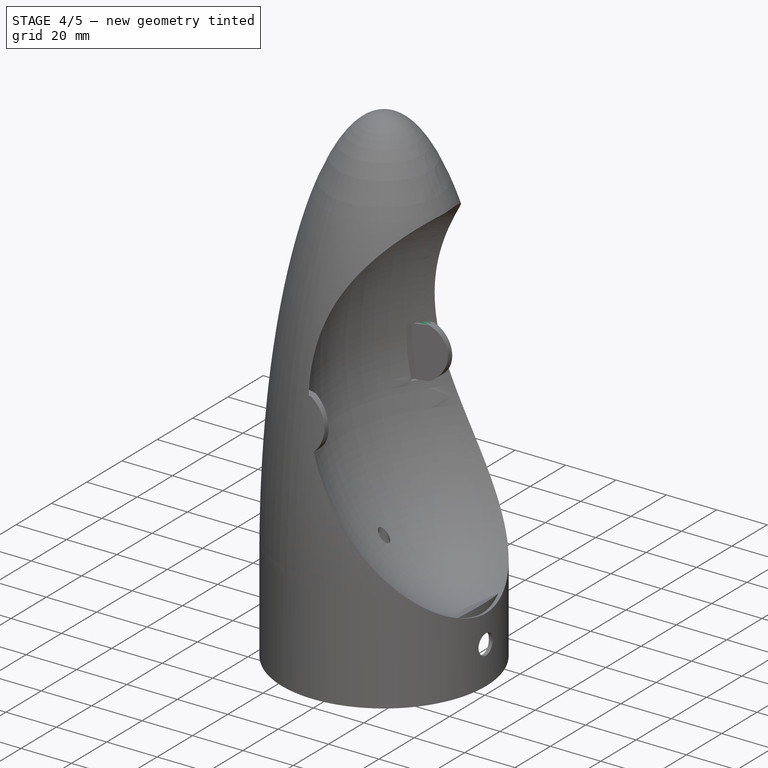
[diagram: stage 4 of 5 — iso view after this stage's code; geometry added in this stage tinted green]
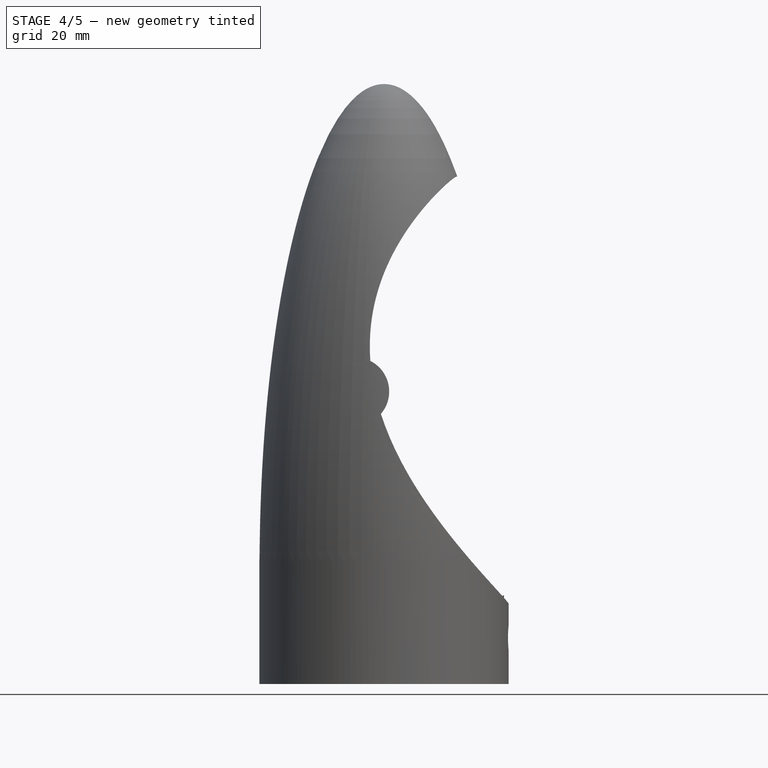
[diagram: stage 4 of 5 — front view after this stage's code; geometry added in this stage tinted green]
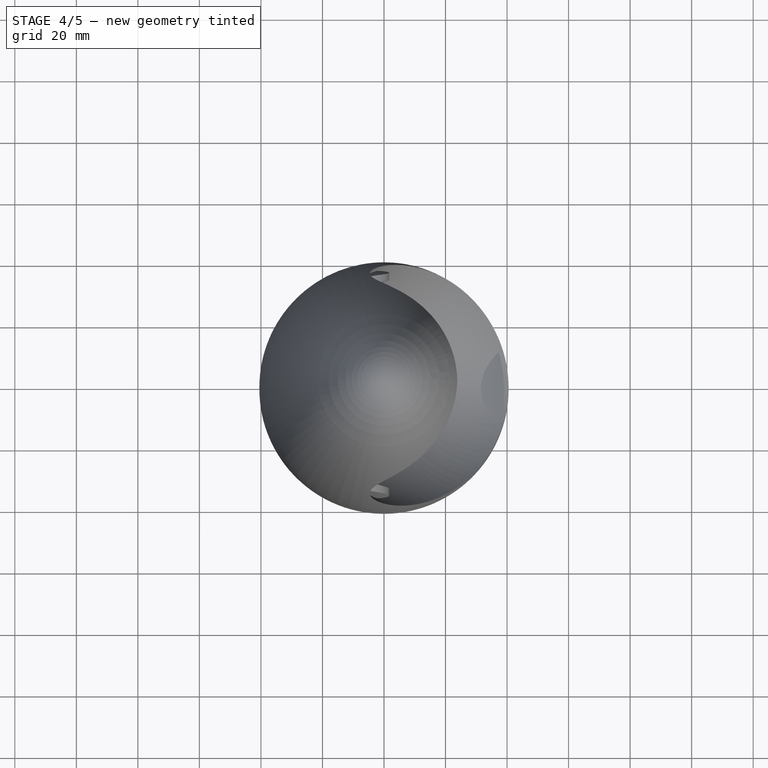
[diagram: stage 4 of 5 — top view after this stage's code; geometry added in this stage tinted green]
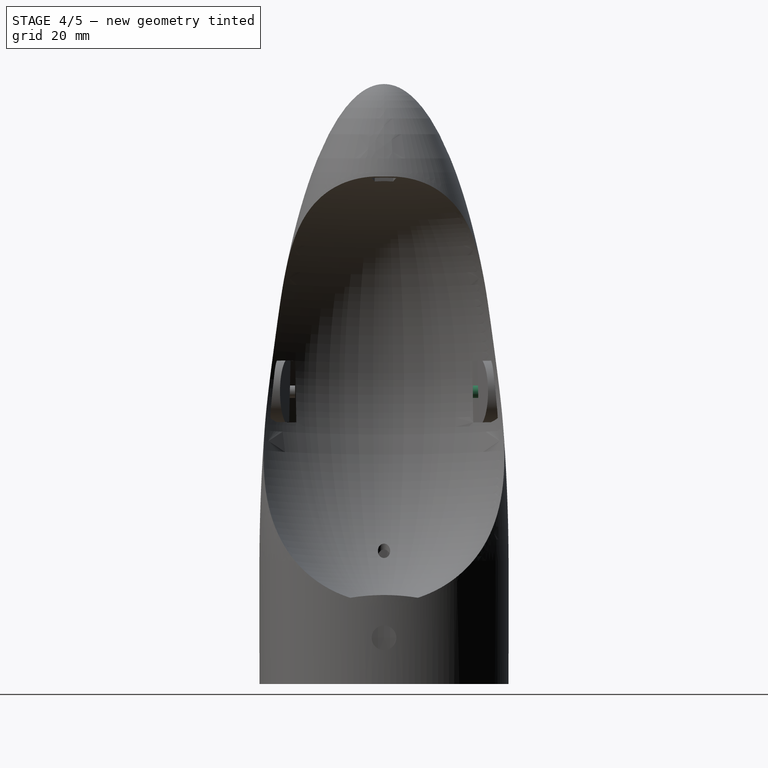
[diagram: stage 4 of 5 — right view after this stage's code; geometry added in this stage tinted green]
FEATURE [Part::Box] Box004  label="Seitenhalter 003"
  Height = 20
  Length = 30
  Placement = pos=(-19,30,85) rot=(1,0,0;0.017453rad)
  Width = 10
FEATURE [Sketcher::SketchObject] Sketch099
  Placement = pos=(0,0,0) rot=(1,0,0;1.5708rad)
  sketch-geometry (5):
    g0: LineSegment StartX=40.5 StartY=0 StartZ=0 EndX=40.5 EndY=40 EndZ=0
    g1: ArcOfEllipse CenterX=-5.9389e-08 CenterY=37.6991 CenterZ=0 NormalX=0 NormalY=0 NormalZ=1 MajorRadius=157.301 MinorRadius=40.5043 AngleXU=-1.5708 StartAngle=1.58542 EndAngle=3.14159
    g2: GeomPoint [constr] X=-1.6e-11 Y=-114.298 Z=0
    g3: LineSegment StartX=40.5 StartY=0 StartZ=0 EndX=0 EndY=0 EndZ=0
    g4: LineSegment StartX=0 StartY=195 StartZ=0 EndX=0 EndY=0 EndZ=0
  constraints (9):
    c: PointOnObject(g0,g-1)
    c: Vertical(g0)
    c: DistanceX(g-1,g0) = 40.5
    c: InternalAlignment(g2,g1)
    c: Coincident(g3,g0)
    c: Coincident(g3,g-1)
    c: Coincident(g4,g1)
    c: Coincident(g4,g-1)
    c: Vertical(g4)
FEATURE [PartDesign::Revolution] Revolution028
  Angle = 360
  Axis = (0,0,1)
  Base = (0,0,0)
  Placement = pos=(0,0,0) rot=(1,0,0;1.5708rad)
  ReferenceAxis = -> Sketch099 [V_Axis]
  Reversed = true
  Sketch = -> Sketch099
FEATURE [Part::MultiCommon] Common018
  Shapes = -> [Revolution028,Box004]
FEATURE [Sketcher::SketchObject] Sketch100
  Placement = pos=(0,0,0) rot=(1,0,0;1.5708rad)
  sketch-geometry (7):
    g0: LineSegment [constr] StartX=25.5796 StartY=175.154 StartZ=0 EndX=39 EndY=-31.3979 EndZ=0
    g1: ArcOfEllipse CenterX=30.7875 CenterY=95 CenterZ=0 NormalX=0 NormalY=0 NormalZ=1 MajorRadius=71.7927 MinorRadius=51.5 AngleXU=1.5708 StartAngle=3.23192 EndAngle=6.37351
    g2: LineSegment [constr] StartX=30.7875 StartY=166.793 StartZ=0 EndX=30.7875 EndY=23.2073 EndZ=0
    g3: LineSegment [constr] StartX=-20.7125 StartY=95 StartZ=0 EndX=82.2875 EndY=95 EndZ=0
    g4: GeomPoint [constr] X=30.7875 Y=145.019 Z=0
    g5: GeomPoint [constr] X=30.7875 Y=44.9806 Z=0
    g6: LineSegment StartX=26.1419 StartY=166.5 StartZ=0 EndX=35.4331 EndY=23.5 EndZ=0
  constraints (11):
    c: DistanceX(g-1,g0) = 39
    c: InternalAlignment(g2-g5 -> g1) x4
    c: PointOnObject(g1,g0)
    c: PointOnObject(g1,g0)
    c: PointOnObject(g1,g0)
    c: Vertical(g2)
    c: DistanceY(g1,g1) = 143
    c: DistanceY(g-1,g1) = 166.5
    c: DistanceX(g1,g3) = 51.5
    c: Coincident(g6,g1)
    c: Coincident(g6,g1)
FEATURE [PartDesign::Revolution] Revolution029  label="Öffnung_dense011"
  Angle = 360
  Axis = (13.4204,0,-206.552)
  Base = (25.5796,0,175.154)
  Placement = pos=(0,0,0) rot=(1,0,0;1.5708rad)
  ReferenceAxis = -> Sketch100 [Axis0]
  Sketch = -> Sketch100
FEATURE [Sketcher::SketchObject] Sketch101
  Placement = pos=(0,0,0) rot=(1,0,0;1.5708rad)
  sketch-geometry (9):
    g0: LineSegment StartX=40.5 StartY=0 StartZ=0 EndX=40.5 EndY=40 EndZ=0
    g1: ArcOfEllipse CenterX=0 CenterY=37.6991 CenterZ=0 NormalX=0 NormalY=0 NormalZ=1 MajorRadius=157.301 MinorRadius=40.5043 AngleXU=-1.5708 StartAngle=1.58542 EndAngle=3.14159
    g2: LineSegment [constr] StartX=40.5043 StartY=37.6991 StartZ=0 EndX=-40.5043 EndY=37.6991 EndZ=0
    g3: GeomPoint [constr] X=-7.7467e-08 Y=-114.298 Z=0
    g4: GeomPoint [constr] X=7.7467e-08 Y=189.696 Z=0
    g5: ArcOfCircle CenterX=0 CenterY=178 CenterZ=0 NormalX=0 NormalY=0 NormalZ=1 Radius=17 StartAngle=1.5708 EndAngle=1.5708
    g6: GeomPoint [constr] X=1.93676e-07 Y=195 Z=0
    g7: LineSegment StartX=0 StartY=0 StartZ=0 EndX=40.5 EndY=0 EndZ=0
    g8: LineSegment StartX=0 StartY=0 StartZ=0 EndX=0 EndY=195 EndZ=0
  constraints (21):
    c: Vertical(g0)
    c: DistanceX(g-1,g0) = 40.5
    c: InternalAlignment(g2,g1)
    c: InternalAlignment(g3,g1)
    c: InternalAlignment(g4,g1)
    c: PointOnObject(g1,g-2)
    c: Coincident(g1,g0)
    c: PointOnObject(g5,g-2)
    c: PointOnObject(g5,g-2)
    c: Coincident(g1,g5)
    c: PointOnObject(g6,g1)
    c: PointOnObject(g6,g5)
    c: Tangent(g1,g5,g6) = -1.5708
    c: Radius(g5) = 17
    c: DistanceY(g2,g0) = 2.30092
    c: Coincident(g7,g-1)
    c: Coincident(g7,g0)
    c: Horizontal(g7)
    c: Coincident(g8,g-1)
    c: Coincident(g8,g1)
    c: Vertical(g8)
FEATURE [PartDesign::Revolution] Revolution030
  Angle = 360
  Axis = (0,0,1)
  Base = (0,0,0)
  Placement = pos=(0,0,0) rot=(1,0,0;1.5708rad)
  ReferenceAxis = -> Sketch101 [V_Axis]
  Reversed = true
  Sketch = -> Sketch101
FEATURE [Part::MultiCommon] Common019
  Shapes = -> [Revolution029,Revolution030]
FEATURE [Part::MultiCommon] Common020
  Shapes = -> [Common018,Common019]
FEATURE [Part::Cut] Cut015  label="Fallschirmtüre004"
  Base = -> Common021
  Tool = -> Revolution033
FEATURE [Part::Cut] Cut016
  Base = -> Common020
  Tool = -> Cut015
FEATURE [Part::MultiCommon] Common022
  Shapes = -> [Cut016,Pad008]
FEATURE [Part::Cut] Cut017
  Base = -> Common022
  Tool = -> Pad009
FEATURE [Part::MultiFuse] Fusion004
  Shapes = -> [Fusion003,Cut017]
FEATURE [Part::MultiFuse] Fusion005
  Shapes = -> [Fusion004,Cut]
FEATURE [Sketcher::SketchObject] Sketch115
  Placement = pos=(0,0,21) rot=(0,0,1;0rad)
  sketch-geometry (2):
    g0: ArcOfCircle CenterX=38.4818 CenterY=0.10627 CenterZ=0 NormalX=0 NormalY=0 NormalZ=1 Radius=27.4549 StartAngle=1.87861 EndAngle=4.4101
    g1: ArcOfCircle CenterX=0 CenterY=0 CenterZ=0 NormalX=0 NormalY=0 NormalZ=1 Radius=40 StartAngle=5.57218 EndAngle=6.99971
  constraints (4):
    c: Coincident(g0,g1)
    c: Coincident(g1,g0)
    c: Radius(g1) = 40
    c: Coincident(g1,g-1)
FEATURE [Part::Cut] Cut021
  Base = -> Fusion005
  Tool = -> Cylinder001
FEATURE [Part::MultiFuse] Fusion006
  Shapes = -> [Cut021,Pad]
FEATURE [Part::Cylinder] Cylinder005  label="Zylinder005"
  Angle = 360
  Height = 4
  Placement = pos=(-16,32.9,95) rot=(1,0,0;1.5708rad)
  Radius = 2
FEATURE [Part::MultiFuse] Fusion007
  Shapes = -> [Cylinder004,Fusion006]
FEATURE [Part::MultiFuse] Fusion008
  Shapes = -> [Cylinder005,Fusion007]
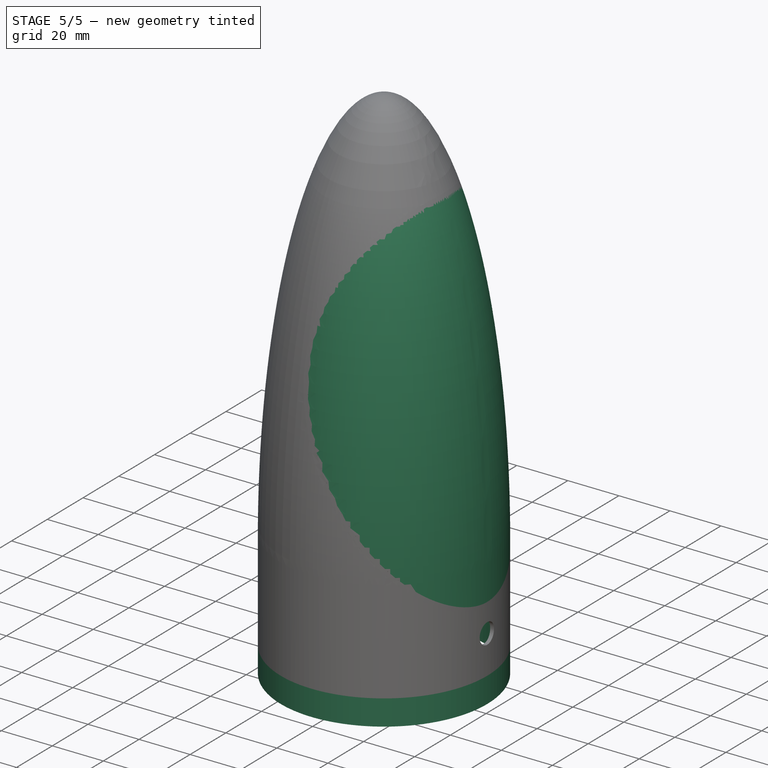
[diagram: stage 5 of 5 — iso view after this stage's code; geometry added in this stage tinted green]
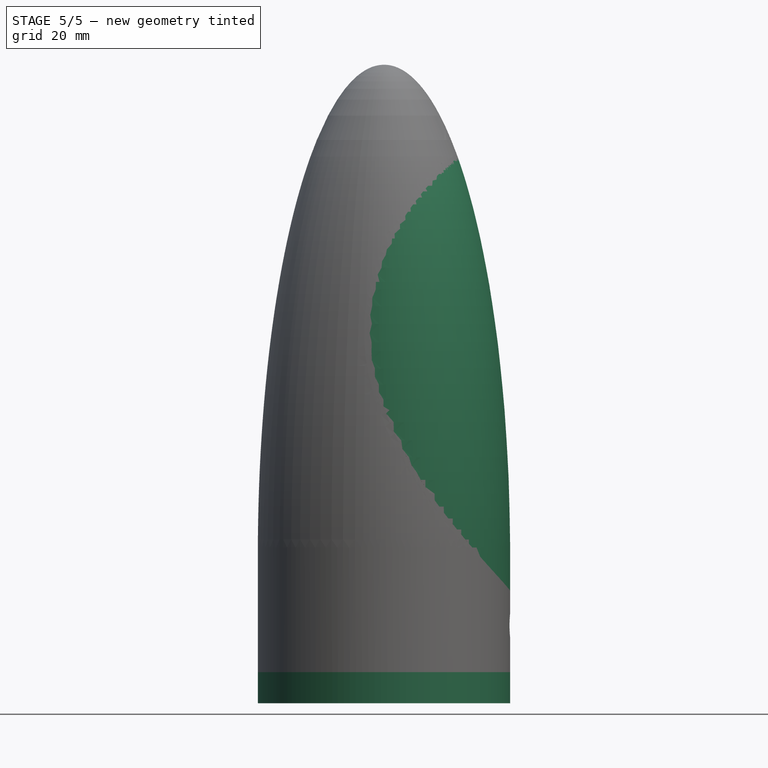
[diagram: stage 5 of 5 — front view after this stage's code; geometry added in this stage tinted green]
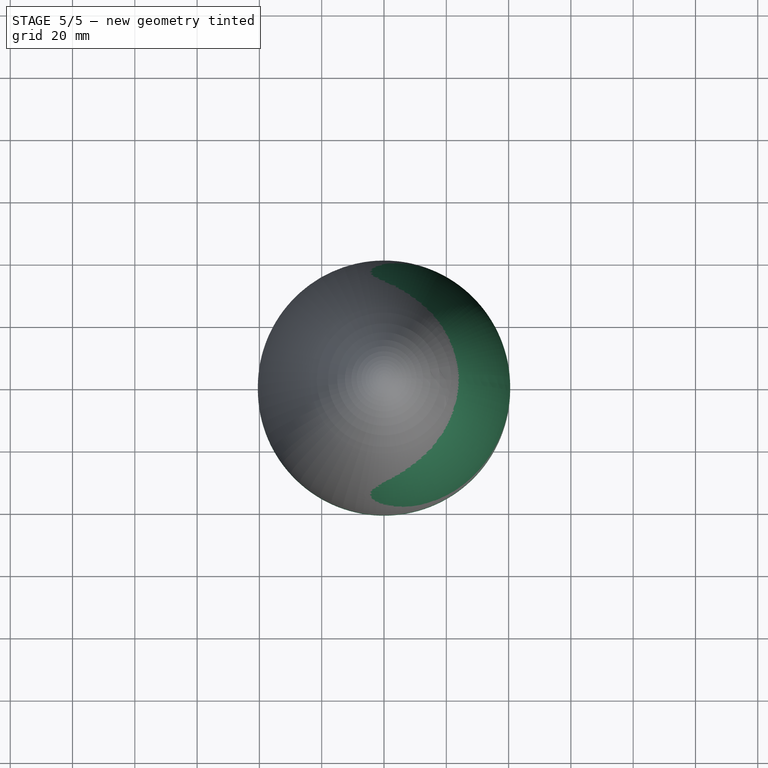
[diagram: stage 5 of 5 — top view after this stage's code; geometry added in this stage tinted green]
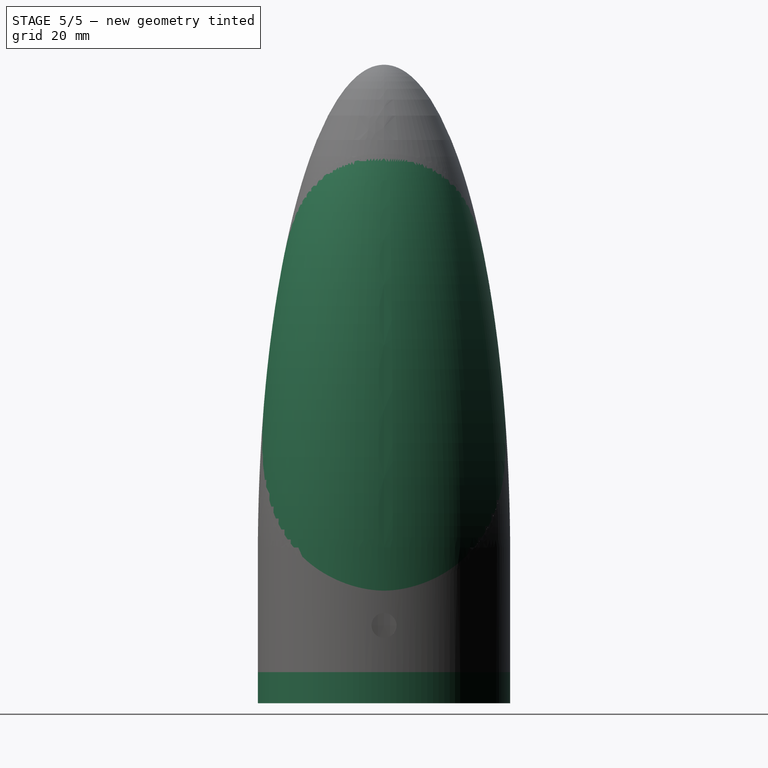
[diagram: stage 5 of 5 — right view after this stage's code; geometry added in this stage tinted green]
FEATURE [Sketcher::SketchObject] Sketch070
  Placement = pos=(0,0,0) rot=(1,0,0;1.5708rad)
  sketch-geometry (7):
    g0: LineSegment [constr] StartX=24.6736 StartY=175.154 StartZ=0 EndX=39 EndY=-31.3969 EndZ=0
    g1: ArcOfEllipse CenterX=30.2331 CenterY=95 CenterZ=0 NormalX=0 NormalY=0 NormalZ=1 MajorRadius=70.3324 MinorRadius=50 AngleXU=1.5708 StartAngle=3.23885 EndAngle=6.38044
    g2: LineSegment [constr] StartX=30.2331 StartY=165.332 StartZ=0 EndX=30.2331 EndY=24.6676 EndZ=0
    g3: LineSegment [constr] StartX=-19.7669 StartY=95 StartZ=0 EndX=80.2331 EndY=95 EndZ=0
    g4: GeomPoint [constr] X=30.2331 Y=144.464 Z=0
    g5: GeomPoint [constr] X=30.2331 Y=45.5365 Z=0
    g6: LineSegment StartX=25.3779 StartY=165 StartZ=0 EndX=35.0883 EndY=25 EndZ=0
  constraints (11):
    c: DistanceX(g-1,g0) = 39
    c: InternalAlignment(g2-g5 -> g1) x4
    c: PointOnObject(g1,g0)
    c: PointOnObject(g1,g0)
    c: PointOnObject(g1,g0)
    c: Vertical(g2)
    c: DistanceY(g1,g1) = 140
    c: DistanceY(g-1,g1) = 165
    c: DistanceX(g1,g3) = 50
    c: Coincident(g6,g1)
    c: Coincident(g6,g1)
FEATURE [PartDesign::Revolution] Revolution006  label="Öffnung_dense003"
  Angle = 360
  Axis = (14.3264,0,-206.551)
  Base = (24.6736,0,175.154)
  Placement = pos=(0,0,0) rot=(1,0,0;1.5708rad)
  ReferenceAxis = -> Sketch070 [Axis0]
  Sketch = -> Sketch070
FEATURE [Sketcher::SketchObject] Sketch071
  Placement = pos=(0,0,0) rot=(1,0,0;1.5708rad)
  sketch-geometry (9):
    g0: LineSegment StartX=40.5 StartY=0 StartZ=0 EndX=40.5 EndY=40 EndZ=0
    g1: ArcOfEllipse CenterX=0 CenterY=37.6991 CenterZ=0 NormalX=0 NormalY=0 NormalZ=1 MajorRadius=157.301 MinorRadius=40.5043 AngleXU=-1.5708 StartAngle=1.58542 EndAngle=3.14159
    g2: LineSegment [constr] StartX=40.5043 StartY=37.6991 StartZ=0 EndX=-40.5043 EndY=37.6991 EndZ=0
    g3: GeomPoint [constr] X=-7.7467e-08 Y=-114.298 Z=0
    g4: GeomPoint [constr] X=7.7467e-08 Y=189.696 Z=0
    g5: ArcOfCircle CenterX=0 CenterY=178 CenterZ=0 NormalX=0 NormalY=0 NormalZ=1 Radius=17 StartAngle=1.5708 EndAngle=1.5708
    g6: GeomPoint [constr] X=1.93676e-07 Y=195 Z=0
    g7: LineSegment StartX=0 StartY=0 StartZ=0 EndX=40.5 EndY=0 EndZ=0
    g8: LineSegment StartX=0 StartY=0 StartZ=0 EndX=0 EndY=195 EndZ=0
  constraints (21):
    c: Vertical(g0)
    c: DistanceX(g-1,g0) = 40.5
    c: InternalAlignment(g2,g1)
    c: InternalAlignment(g3,g1)
    c: InternalAlignment(g4,g1)
    c: PointOnObject(g1,g-2)
    c: Coincident(g1,g0)
    c: PointOnObject(g5,g-2)
    c: PointOnObject(g5,g-2)
    c: Coincident(g1,g5)
    c: PointOnObject(g6,g1)
    c: PointOnObject(g6,g5)
    c: Tangent(g1,g5,g6) = -1.5708
    c: Radius(g5) = 17
    c: DistanceY(g2,g0) = 2.30092
    c: Coincident(g7,g-1)
    c: Coincident(g7,g0)
    c: Horizontal(g7)
    c: Coincident(g8,g-1)
    c: Coincident(g8,g1)
    c: Vertical(g8)
FEATURE [PartDesign::Revolution] Revolution007
  Angle = 360
  Axis = (0,0,1)
  Base = (0,0,0)
  Placement = pos=(0,0,0) rot=(1,0,0;1.5708rad)
  ReferenceAxis = -> Sketch071 [V_Axis]
  Reversed = true
  Sketch = -> Sketch071
FEATURE [Part::MultiCommon] Common002
  Shapes = -> [Revolution006,Revolution007]
FEATURE [Sketcher::SketchObject] Sketch072
  Placement = pos=(0,0,0) rot=(1,0,0;1.5708rad)
  sketch-geometry (10):
    g0: LineSegment StartX=39 StartY=40 StartZ=0 EndX=39 EndY=15 EndZ=0
    g1: LineSegment StartX=39 StartY=15 StartZ=0 EndX=39.5 EndY=0 EndZ=0
    g2: ArcOfCircle CenterX=0 CenterY=178 CenterZ=0 NormalX=0 NormalY=0 NormalZ=1 Radius=15 StartAngle=1.5708 EndAngle=1.5708
    g3: ArcOfEllipse CenterX=0 CenterY=37.6991 CenterZ=0 NormalX=0 NormalY=0 NormalZ=1 MajorRadius=155.301 MinorRadius=39.0043 AngleXU=1.5708 StartAngle=4.72721 EndAngle=6.28319
    g4: LineSegment [constr] StartX=0 StartY=193 StartZ=0 EndX=0 EndY=-117.602 EndZ=0
    g5: LineSegment [constr] StartX=-39.0043 StartY=37.6991 StartZ=0 EndX=39.0043 EndY=37.6991 EndZ=0
    g6: GeomPoint [constr] X=-1.6e-11 Y=188.022 Z=0
    g7: GeomPoint [constr] X=0 Y=-112.624 Z=0
    g8: LineSegment StartX=0 StartY=0 StartZ=0 EndX=-2e-12 EndY=193 EndZ=0
    g9: LineSegment StartX=0 StartY=0 StartZ=0 EndX=39.5 EndY=0 EndZ=0
  constraints (15):
    c: Vertical(g0)
    c: Coincident(g0,g1)
    c: DistanceY(g1,g0) = 15
    c: PointOnObject(g2,g-2)
    c: Radius(g2) = 15
    c: InternalAlignment(g4-g7 -> g3) x4
    c: Vertical(g4)
    c: Coincident(g3,g2)
    c: Coincident(g3,g0)
    c: Coincident(g8,g2)
    c: Coincident(g8,g-1)
    c: Coincident(g9,g-1)
    c: Coincident(g9,g1)
    c: Horizontal(g9)
    c: DistanceX(g9,g9) = 39.5
FEATURE [PartDesign::Revolution] Revolution008
  Angle = 360
  Axis = (0,0,1)
  Base = (0,0,0)
  Placement = pos=(0,0,0) rot=(1,0,0;1.5708rad)
  ReferenceAxis = -> Sketch072 [V_Axis]
  Reversed = true
  Sketch = -> Sketch072
FEATURE [Part::Cut] Cut002  label="door"
  Base = -> Common002
  Tool = -> Revolution008
FEATURE [Sketcher::SketchObject] Sketch095
  Placement = pos=(0,0,160) rot=(0,0,1;0rad)
  sketch-geometry (4):
    g0: LineSegment StartX=15 StartY=2.5 StartZ=0 EndX=20 EndY=3.5 EndZ=0
    g1: LineSegment StartX=20 StartY=3.5 StartZ=0 EndX=20 EndY=-3.5 EndZ=0
    g2: LineSegment StartX=20 StartY=-3.5 StartZ=0 EndX=15 EndY=-2.5 EndZ=0
    g3: LineSegment StartX=15 StartY=-2.5 StartZ=0 EndX=15 EndY=2.5 EndZ=0
  constraints (12):
    c: Coincident(g0,g1)
    c: Vertical(g1)
    c: Coincident(g1,g2)
    c: Coincident(g2,g3)
    c: Coincident(g3,g0)
    c: Vertical(g3)
    c: Symmetric(g0,g2,g-1)
    c: Symmetric(g0,g1,g-1)
    c: DistanceY(g1,g1) = 7
    c: DistanceY(g3,g3) = 5
    c: DistanceX(g0,g0) = 5
    c: DistanceX(g-1,g0) = 15
FEATURE [PartDesign::Pad] Pad006
  Length = 8
  Length2 = 100
  Placement = pos=(0,0,160) rot=(0,0,1;0rad)
  Sketch = -> Sketch095
  Type = 0
FEATURE [Sketcher::SketchObject] Sketch096
  Placement = pos=(0,0,0) rot=(1,0,0;1.5708rad)
  sketch-geometry (4):
    g0: ArcOfCircle CenterX=16.385 CenterY=136.78 CenterZ=0 NormalX=0 NormalY=0 NormalZ=1 Radius=23.2088 StartAngle=0.120515 EndAngle=1.53413
    g1: LineSegment StartX=17.2358 StartY=159.973 StartZ=0 EndX=24.6717 EndY=179.386 EndZ=0
    g2: LineSegment StartX=24.6717 StartY=179.386 StartZ=0 EndX=62.3292 EndY=158.497 EndZ=0
    g3: LineSegment StartX=62.3292 StartY=158.497 StartZ=0 EndX=39.4255 EndY=139.571 EndZ=0
  constraints (4):
    c: Coincident(g0,g1)
    c: Coincident(g1,g2)
    c: Coincident(g2,g3)
    c: Coincident(g3,g0)
FEATURE [PartDesign::Pad] Pad007
  Length = 60
  Length2 = 100
  Midplane = true
  Placement = pos=(0,0,0) rot=(1,0,0;1.5708rad)
  Sketch = -> Sketch096
  Type = 0
FEATURE [Sketcher::SketchObject] Sketch097
  Placement = pos=(0,0,0) rot=(1,0,0;1.5708rad)
  sketch-geometry (7):
    g0: LineSegment [constr] StartX=24.6736 StartY=175.154 StartZ=0 EndX=39 EndY=-31.3969 EndZ=0
    g1: ArcOfEllipse CenterX=30.2331 CenterY=95 CenterZ=0 NormalX=0 NormalY=0 NormalZ=1 MajorRadius=70.3324 MinorRadius=50 AngleXU=1.5708 StartAngle=3.23885 EndAngle=6.38044
    g2: LineSegment [constr] StartX=30.2331 StartY=165.332 StartZ=0 EndX=30.2331 EndY=24.6676 EndZ=0
    g3: LineSegment [constr] StartX=-19.7669 StartY=95 StartZ=0 EndX=80.2331 EndY=95 EndZ=0
    g4: GeomPoint [constr] X=30.2331 Y=144.464 Z=0
    g5: GeomPoint [constr] X=30.2331 Y=45.5365 Z=0
    g6: LineSegment StartX=25.3779 StartY=165 StartZ=0 EndX=35.0883 EndY=25 EndZ=0
  constraints (11):
    c: DistanceX(g-1,g0) = 39
    c: InternalAlignment(g2-g5 -> g1) x4
    c: PointOnObject(g1,g0)
    c: PointOnObject(g1,g0)
    c: PointOnObject(g1,g0)
    c: Vertical(g2)
    c: DistanceY(g1,g1) = 140
    c: DistanceY(g-1,g1) = 165
    c: DistanceX(g1,g3) = 50
    c: Coincident(g6,g1)
    c: Coincident(g6,g1)
FEATURE [PartDesign::Revolution] Revolution026  label="Öffnung_dense010"
  Angle = 360
  Axis = (14.3264,0,-206.551)
  Base = (24.6736,0,175.154)
  Placement = pos=(0,0,0) rot=(1,0,0;1.5708rad)
  ReferenceAxis = -> Sketch097 [Axis0]
  Sketch = -> Sketch097
FEATURE [Sketcher::SketchObject] Sketch098
  Placement = pos=(0,0,0) rot=(1,0,0;1.5708rad)
  sketch-geometry (9):
    g0: LineSegment StartX=40.5 StartY=0 StartZ=0 EndX=40.5 EndY=40 EndZ=0
    g1: ArcOfEllipse CenterX=0 CenterY=37.6991 CenterZ=0 NormalX=0 NormalY=0 NormalZ=1 MajorRadius=157.301 MinorRadius=40.5043 AngleXU=-1.5708 StartAngle=1.58542 EndAngle=3.14159
    g2: LineSegment [constr] StartX=40.5043 StartY=37.6991 StartZ=0 EndX=-40.5043 EndY=37.6991 EndZ=0
    g3: GeomPoint [constr] X=-7.7467e-08 Y=-114.298 Z=0
    g4: GeomPoint [constr] X=7.7467e-08 Y=189.696 Z=0
    g5: ArcOfCircle CenterX=0 CenterY=178 CenterZ=0 NormalX=0 NormalY=0 NormalZ=1 Radius=17 StartAngle=1.5708 EndAngle=1.5708
    g6: GeomPoint [constr] X=1.93676e-07 Y=195 Z=0
    g7: LineSegment StartX=0 StartY=0 StartZ=0 EndX=40.5 EndY=0 EndZ=0
    g8: LineSegment StartX=0 StartY=0 StartZ=0 EndX=0 EndY=195 EndZ=0
  constraints (21):
    c: Vertical(g0)
    c: DistanceX(g-1,g0) = 40.5
    c: InternalAlignment(g2,g1)
    c: InternalAlignment(g3,g1)
    c: InternalAlignment(g4,g1)
    c: PointOnObject(g1,g-2)
    c: Coincident(g1,g0)
    c: PointOnObject(g5,g-2)
    c: PointOnObject(g5,g-2)
    c: Coincident(g1,g5)
    c: PointOnObject(g6,g1)
    c: PointOnObject(g6,g5)
    c: Tangent(g1,g5,g6) = -1.5708
    c: Radius(g5) = 17
    c: DistanceY(g2,g0) = 2.30092
    c: Coincident(g7,g-1)
    c: Coincident(g7,g0)
    c: Horizontal(g7)
    c: Coincident(g8,g-1)
    c: Coincident(g8,g1)
    c: Vertical(g8)
FEATURE [PartDesign::Revolution] Revolution027
  Angle = 360
  Axis = (0,0,1)
  Base = (0,0,0)
  Placement = pos=(0,0,0) rot=(1,0,0;1.5708rad)
  ReferenceAxis = -> Sketch098 [V_Axis]
  Reversed = true
  Sketch = -> Sketch098
FEATURE [Part::MultiCommon] Common016
  Shapes = -> [Revolution026,Revolution027]
FEATURE [Part::MultiCommon] Common017
  Shapes = -> [Pad007,Common016]
FEATURE [Part::Chamfer] Chamfer
  Base = -> Pad006
  Edges = 1 edges r=3: [Edge11]
FEATURE [Part::MultiFuse] Fusion
  Shapes = -> [Common017,Chamfer]
FEATURE [Part::MultiFuse] Fusion001
  Shapes = -> [Cut002,Fusion]
FEATURE [Part::Cylinder] Cylinder002  label="Zylinder002"
  Angle = 360
  Height = 10
  Placement = pos=(0,0,-10) rot=(0,0,1;0rad)
  Radius = 40.5
FEATURE [Part::Cylinder] Cylinder003  label="Zylinder003"
  Angle = 360
  Height = 10
  Placement = pos=(0,0,-10) rot=(0,0,1;0rad)
  Radius = 39.5
FEATURE [Part::Cut] Cut022  label="Extension"
  Base = -> Cylinder002
  Tool = -> Cylinder003
FEATURE [Part::MultiFuse] Fusion009
  Shapes = -> [Fusion008,Cut022]
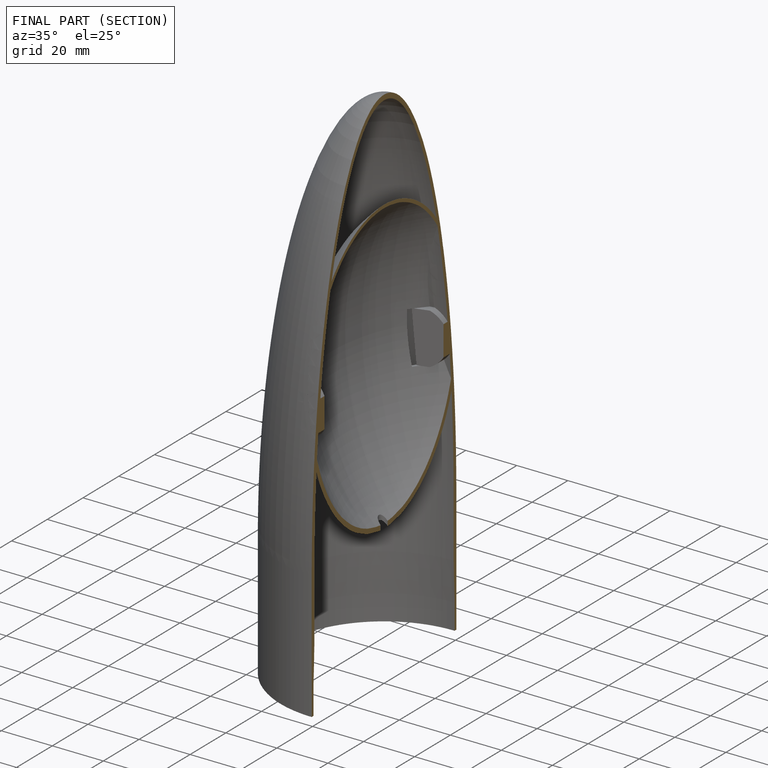
[diagram: finished part — half-section view (interior)]
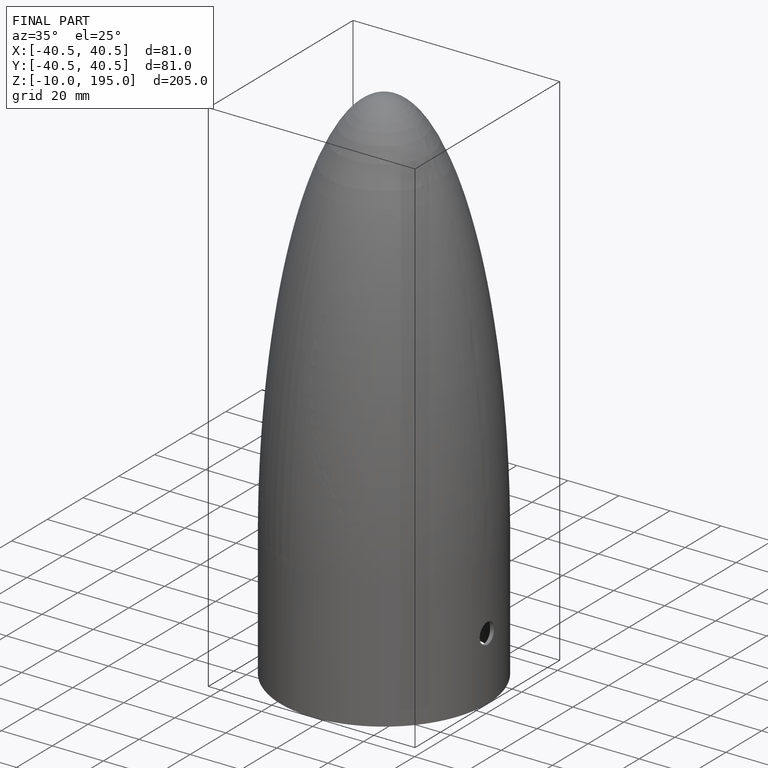
[diagram: finished part — iso view with bounding-box wireframe]
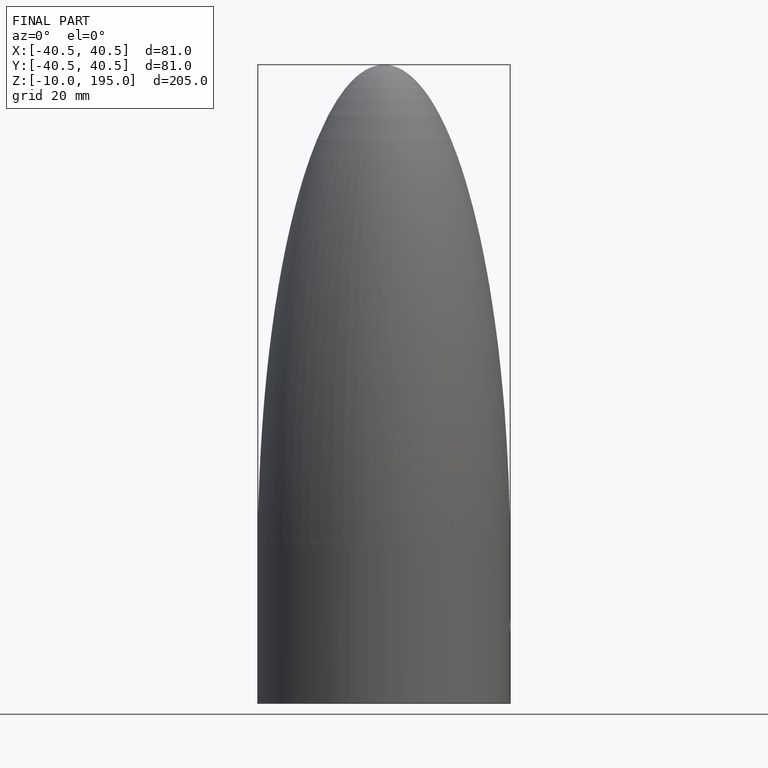
[diagram: finished part — front view with bounding-box wireframe]
